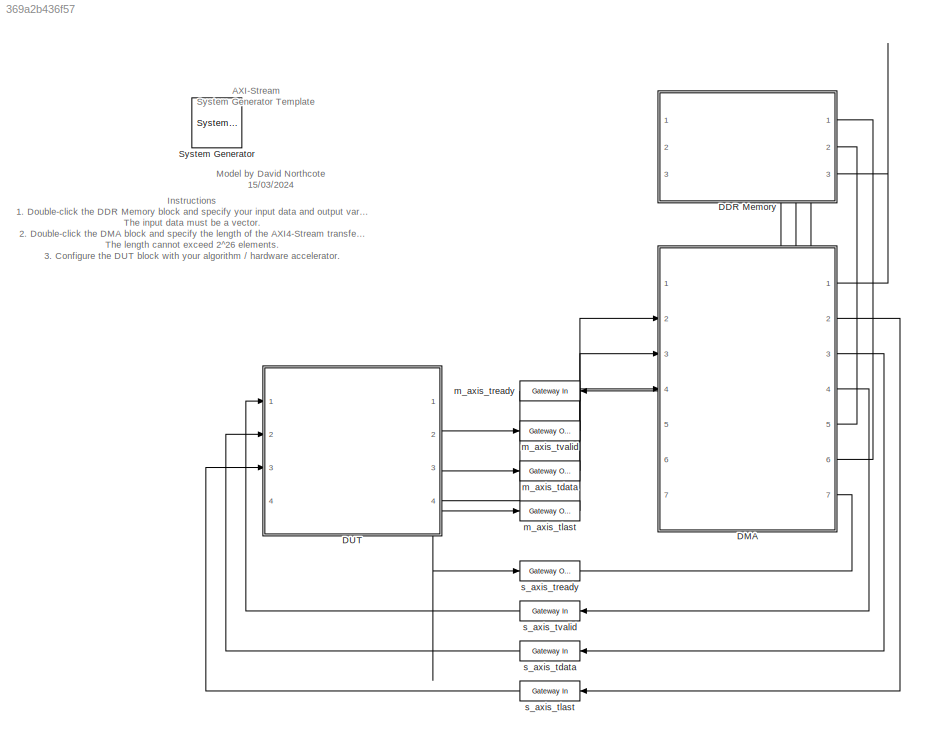
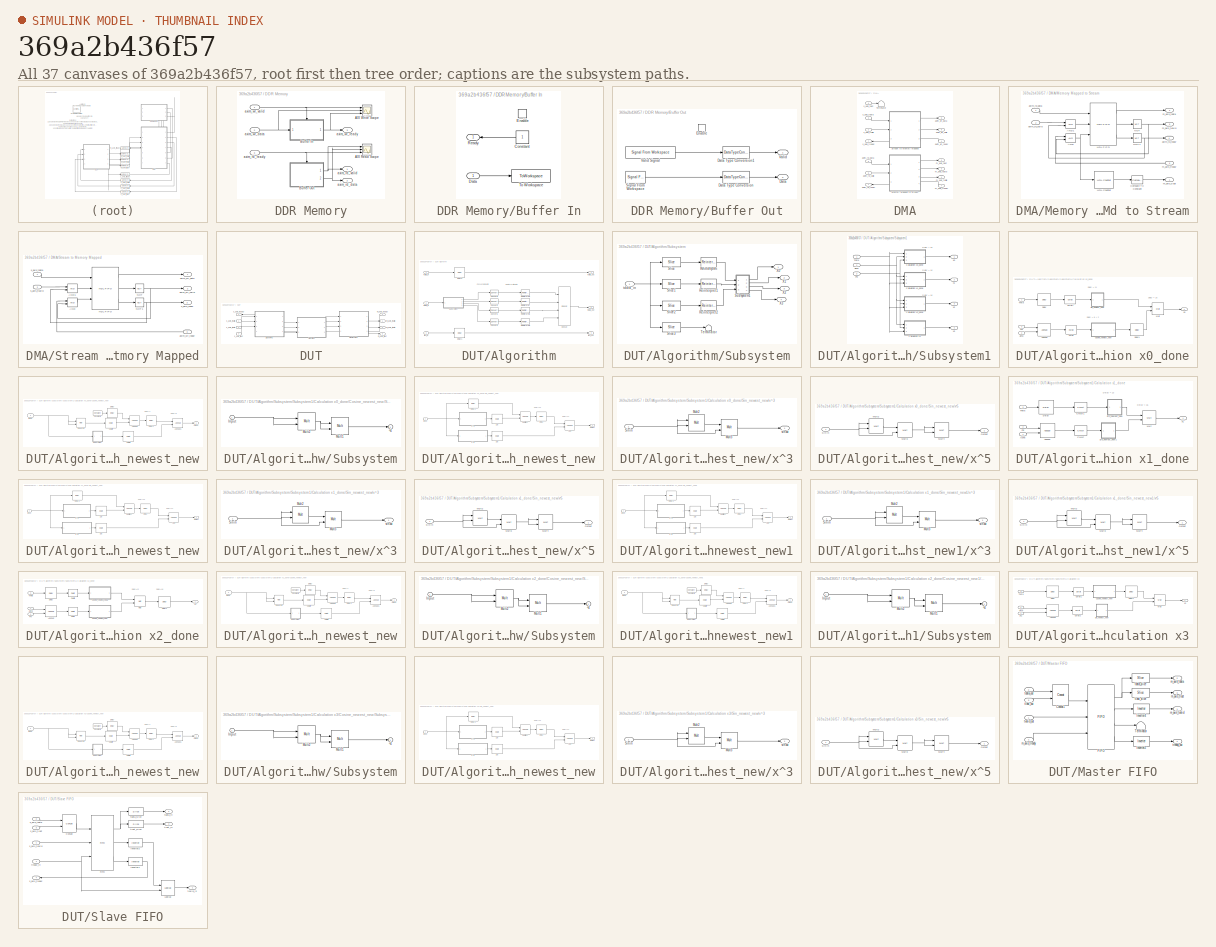
[diagram: thumbnail index - all 37 canvases of the model, root first then tree order]
MODEL slx_369a2b436f57
KIND model
CONFIG AbsTol = auto
CONFIG EnableMultiTasking = off
CONFIG FixedStep = auto
CONFIG MaxStep = auto
CONFIG MinStep = auto
CONFIG PreLoadFcn = clear all;\n\nfs = 100e6;
CONFIG RelTol = 1e-3
CONFIG SampleTimeConstraint = Unconstrained
CONFIG Solver = VariableStepAuto
CONFIG SolverName = VariableStepAuto
CONFIG StartTime = 0.0
CONFIG StopTime = 48/(fs)
BLOCK [Reference]  System Generator  REF=xbsIndex_r4/ System Generator
  AttributesFormatString = System\nGenerator
  Ports = []
  SourceBlock = xbsIndex_r4/ System Generator
  SourceType = Xilinx System Generator Block
  Tag = genX
  UserDataPersistent = on
BLOCK [SubSystem] DDR Memory
  PortSchema = {"entries":[{"content":{"sides":[{"content":{"connectorIds":["Out3","In1","In2"]},"type":"ConnectorPlacement.EquallySpacedRectSide","uuid":"10820561-fcd3-42da-ac38-14c6f993f770"},{"content":{"connectorIds":["In3","Out1","Out2"],"side":"RIGHT"},"type":"ConnectorPlacement.EquallySpacedRectSide","uuid":"072276f7-1cf8-495f-bb0a-1bca7e8326ea"},{"content":{"connectorIds":[],"side":"TOP"},"type":"Connect...<+268ch>
  Ports = [3, 3]
  RequestExecContextInheritance = off
BLOCK [Scope] DDR Memory/AXI Read Scope
  DefaultConfigurationName = spbscopes.TimeScopeBlockCfg
  Floating = off
  NumInputPorts = 3
  Ports = [3]
  ScopeSpecificationString = spbscopes.TimeScopeBlockCfg('CurrentConfiguration', extmgr.ConfigurationSet(extmgr.Configuration('Core','General UI',true,'FigureColor',[0.8 0.8 0.8]),extmgr.Configuration('Core','Source UI',true),extmgr.Configuration('Sources','WiredSimulink',true,'DataLoggingVariableName','ScopeData1'),extmgr.Configuration('Visuals','Time Domain',true,'DisplayLayoutDimensions',[3 1],'DisplayPropertyDefaults',str...<+4887ch>
  UserDataPersistent = on
BLOCK [Scope] DDR Memory/AXI Write Scope
  DefaultConfigurationName = spbscopes.TimeScopeBlockCfg
  Floating = off
  NumInputPorts = 3
  Ports = [3]
  ScopeSpecificationString = spbscopes.TimeScopeBlockCfg('CurrentConfiguration', extmgr.ConfigurationSet(extmgr.Configuration('Core','General UI',true,'FigureColor',[0.8 0.8 0.8]),extmgr.Configuration('Core','Source UI',true),extmgr.Configuration('Sources','WiredSimulink',true),extmgr.Configuration('Visuals','Time Domain',true,'DisplayLayoutDimensions',[3 1],'DisplayPropertyDefaults',struct('YLabelReal','Amplitude','ColorOrde...<+4840ch>
  UserDataPersistent = on
BLOCK [SubSystem] DDR Memory/Buffer In
  Ports = [1, 1, 1]
  RequestExecContextInheritance = off
BLOCK [Constant] DDR Memory/Buffer In/Constant
  OutDataTypeStr = boolean
  SampleTime = -1
BLOCK [Inport] DDR Memory/Buffer In/Data
BLOCK [EnablePort] DDR Memory/Buffer In/Enable
  Ports = []
BLOCK [Outport] DDR Memory/Buffer In/Ready
BLOCK [ToWorkspace] DDR Memory/Buffer In/To Workspace
  FixptAsFi = on
  MaxDataPoints = inf
  Ports = [1]
  SampleTime = -1
  VariableName = bufferIn
BLOCK [SubSystem] DDR Memory/Buffer Out
  Ports = [0, 2, 1]
  RequestExecContextInheritance = off
BLOCK [Outport] DDR Memory/Buffer Out/Data
  Port = 2
BLOCK [DataTypeConversion] DDR Memory/Buffer Out/Data Type Conversion
  OutDataTypeStr = dtypeStr
  RndMeth = Floor
  SaturateOnIntegerOverflow = off
BLOCK [DataTypeConversion] DDR Memory/Buffer Out/Data Type Conversion1
  OutDataTypeStr = boolean
  RndMeth = Floor
  SaturateOnIntegerOverflow = off
BLOCK [EnablePort] DDR Memory/Buffer Out/Enable
  Ports = []
BLOCK [Reference] DDR Memory/Buffer Out/Signal From Workspace  REF=dspsrcs4/Signal From
Workspace
  Ports = [0, 1]
  SourceBlock = dspsrcs4/Signal From\nWorkspace
  SourceProductBaseCode = DS
  SourceType = Signal From Workspace
BLOCK [Outport] DDR Memory/Buffer Out/Valid
BLOCK [Reference] DDR Memory/Buffer Out/Valid Signal  REF=dspsrcs4/Signal From
Workspace
  Ports = [0, 1]
  SourceBlock = dspsrcs4/Signal From\nWorkspace
  SourceProductBaseCode = DS
  SourceType = Signal From Workspace
BLOCK [Outport] DDR Memory/axim_rd_data
  Port = 2
BLOCK [Inport] DDR Memory/axim_rd_ready
  Port = 3
BLOCK [Outport] DDR Memory/axim_rd_valid
BLOCK [Inport] DDR Memory/axim_wr_data
  Port = 2
BLOCK [Outport] DDR Memory/axim_wr_ready
  Port = 3
BLOCK [Inport] DDR Memory/axim_wr_valid
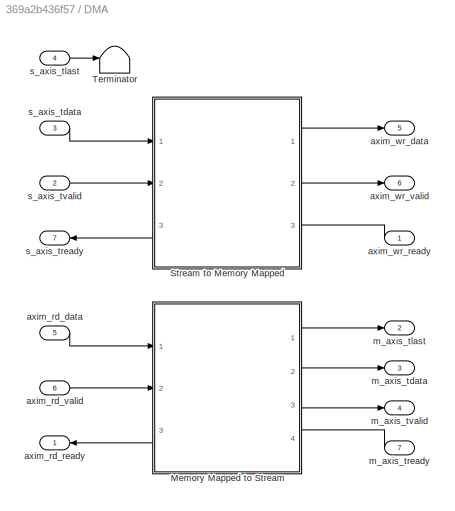
BLOCK [SubSystem] DMA
  PortSchema = {"entries":[{"content":{"sides":[{"content":{"connectorIds":["Out5","Out6","In1","Out7","In2","In3","In4"]},"type":"ConnectorPlacement.EquallySpacedRectSide","uuid":"c102abcb-2e00-4fd7-85df-5b9b0b898bd0"},{"content":{"connectorIds":["In5","In6","Out1","Out2","Out3","Out4","In7"],"side":"RIGHT"},"type":"ConnectorPlacement.EquallySpacedRectSide","uuid":"9e178eef-1e1d-41e3-971e-2eb7c6a5387e"},{"conte...<+464ch>
  Ports = [7, 7]
  RequestExecContextInheritance = off
BLOCK [SubSystem] DMA/Memory Mapped to Stream
  PortSchema = {"entries":[{"content":{"sides":[{"content":{"connectorIds":["In1","In2","Out4"]},"type":"ConnectorPlacement.EquallySpacedRectSide","uuid":"10820561-fcd3-42da-ac38-14c6f993f770"},{"content":{"connectorIds":["Out1","Out2","Out3","In3"],"side":"RIGHT"},"type":"ConnectorPlacement.EquallySpacedRectSide","uuid":"072276f7-1cf8-495f-bb0a-1bca7e8326ea"},{"content":{"connectorIds":[],"side":"TOP"},"type":"...<+275ch>
  Ports = [3, 4]
  RequestExecContextInheritance = off
BLOCK [Logic] DMA/Memory Mapped to Stream/AND
  AllPortsSameDT = off
  IconShape = distinctive
  OutDataTypeStr = boolean
  Ports = [2, 1]
BLOCK [Logic] DMA/Memory Mapped to Stream/AND1
  AllPortsSameDT = off
  IconShape = distinctive
  OutDataTypeStr = boolean
  Ports = [2, 1]
BLOCK [Reference] DMA/Memory Mapped to Stream/Compare To Constant  REF=simulink/Logic and Bit
Operations/Compare
To Constant
  Ports = [1, 1]
  SourceBlock = simulink/Logic and Bit\nOperations/Compare\nTo Constant
  SourceProductBaseCode = SL
  SourceType = Compare To Constant
BLOCK [Reference] DMA/Memory Mapped to Stream/HDL Counter  REF=hdlsllib/Sources/HDL Counter
  Ports = [1, 1]
  SourceBlock = hdlsllib/Sources/HDL Counter
  SourceProductBaseCode = SL
  SourceType = HDL Counter
BLOCK [Reference] DMA/Memory Mapped to Stream/HDL FIFO  REF=hdlsllib/HDL RAMs/HDL FIFO
  Ports = [3, 3]
  SourceBlock = hdlsllib/HDL RAMs/HDL FIFO
  SourceProductBaseCode = SL
  SourceType = HDL_FIFO
BLOCK [Logic] DMA/Memory Mapped to Stream/NOT
  AllPortsSameDT = off
  IconShape = distinctive
  Operator = NOT
  OutDataTypeStr = boolean
  Ports = [1, 1]
BLOCK [Logic] DMA/Memory Mapped to Stream/NOT1
  AllPortsSameDT = off
  IconShape = distinctive
  Operator = NOT
  OutDataTypeStr = boolean
  Ports = [1, 1]
BLOCK [Inport] DMA/Memory Mapped to Stream/axim_rd_data
BLOCK [Outport] DMA/Memory Mapped to Stream/axim_rd_ready
  Port = 4
  VectorParamsAs1DForOutWhenUnconnected = off
BLOCK [Inport] DMA/Memory Mapped to Stream/axim_rd_valid
  Port = 2
BLOCK [Outport] DMA/Memory Mapped to Stream/m_axis_tdata
  Port = 2
  VectorParamsAs1DForOutWhenUnconnected = off
BLOCK [Outport] DMA/Memory Mapped to Stream/m_axis_tlast
  VectorParamsAs1DForOutWhenUnconnected = off
BLOCK [Inport] DMA/Memory Mapped to Stream/m_axis_tready
  Port = 3
BLOCK [Outport] DMA/Memory Mapped to Stream/m_axis_tvalid
  Port = 3
  VectorParamsAs1DForOutWhenUnconnected = off
BLOCK [SubSystem] DMA/Stream to Memory Mapped
  PortSchema = {"entries":[{"content":{"sides":[{"content":{"connectorIds":["In1","In2","Out3"]},"type":"ConnectorPlacement.EquallySpacedRectSide","uuid":"10820561-fcd3-42da-ac38-14c6f993f770"},{"content":{"connectorIds":["Out1","Out2","In3"],"side":"RIGHT"},"type":"ConnectorPlacement.EquallySpacedRectSide","uuid":"072276f7-1cf8-495f-bb0a-1bca7e8326ea"},{"content":{"connectorIds":[],"side":"TOP"},"type":"Connect...<+268ch>
  Ports = [3, 3]
  RequestExecContextInheritance = off
BLOCK [Logic] DMA/Stream to Memory Mapped/AND
  AllPortsSameDT = off
  IconShape = distinctive
  OutDataTypeStr = boolean
  Ports = [2, 1]
BLOCK [Logic] DMA/Stream to Memory Mapped/AND1
  AllPortsSameDT = off
  IconShape = distinctive
  OutDataTypeStr = boolean
  Ports = [2, 1]
BLOCK [Reference] DMA/Stream to Memory Mapped/HDL FIFO  REF=hdlsllib/HDL RAMs/HDL FIFO
  Ports = [3, 3]
  SourceBlock = hdlsllib/HDL RAMs/HDL FIFO
  SourceProductBaseCode = SL
  SourceType = HDL_FIFO
BLOCK [Logic] DMA/Stream to Memory Mapped/NOT
  AllPortsSameDT = off
  IconShape = distinctive
  Operator = NOT
  OutDataTypeStr = boolean
  Ports = [1, 1]
BLOCK [Logic] DMA/Stream to Memory Mapped/NOT1
  AllPortsSameDT = off
  IconShape = distinctive
  Operator = NOT
  OutDataTypeStr = boolean
  Ports = [1, 1]
BLOCK [Outport] DMA/Stream to Memory Mapped/axim_wr_data
  VectorParamsAs1DForOutWhenUnconnected = off
BLOCK [Inport] DMA/Stream to Memory Mapped/axim_wr_ready
  Port = 3
BLOCK [Outport] DMA/Stream to Memory Mapped/axim_wr_valid
  Port = 2
  VectorParamsAs1DForOutWhenUnconnected = off
BLOCK [Outport] DMA/Stream to Memory Mapped/s_axis_ready
  Port = 3
  VectorParamsAs1DForOutWhenUnconnected = off
BLOCK [Inport] DMA/Stream to Memory Mapped/s_axis_tdata
BLOCK [Inport] DMA/Stream to Memory Mapped/s_axis_tvalid
  Port = 2
BLOCK [Terminator] DMA/Terminator
BLOCK [Inport] DMA/axim_rd_data
  Port = 5
BLOCK [Outport] DMA/axim_rd_ready
BLOCK [Inport] DMA/axim_rd_valid
  Port = 6
BLOCK [Outport] DMA/axim_wr_data
  Port = 5
BLOCK [Inport] DMA/axim_wr_ready
BLOCK [Outport] DMA/axim_wr_valid
  Port = 6
BLOCK [Outport] DMA/m_axis_tdata
  Port = 3
  VectorParamsAs1DForOutWhenUnconnected = off
BLOCK [Outport] DMA/m_axis_tlast
  Port = 2
  VectorParamsAs1DForOutWhenUnconnected = off
BLOCK [Inport] DMA/m_axis_tready
  Port = 7
BLOCK [Outport] DMA/m_axis_tvalid
  Port = 4
  VectorParamsAs1DForOutWhenUnconnected = off
BLOCK [Inport] DMA/s_axis_tdata
  Port = 3
BLOCK [Inport] DMA/s_axis_tlast
  Port = 4
BLOCK [Outport] DMA/s_axis_tready
  Port = 7
  VectorParamsAs1DForOutWhenUnconnected = off
BLOCK [Inport] DMA/s_axis_tvalid
  Port = 2
BLOCK [SubSystem] DUT
  PortSchema = {"entries":[{"content":{"sides":[{"content":{"connectorIds":["Out4","In1","In2","In3"]},"type":"ConnectorPlacement.EquallySpacedRectSide","uuid":"c102abcb-2e00-4fd7-85df-5b9b0b898bd0"},{"content":{"connectorIds":["In4","Out1","Out2","Out3"],"side":"RIGHT"},"type":"ConnectorPlacement.EquallySpacedRectSide","uuid":"9e178eef-1e1d-41e3-971e-2eb7c6a5387e"},{"content":{"connectorIds":[],"side":"TOP"},"t...<+281ch>
  Ports = [4, 4]
  RequestExecContextInheritance = off
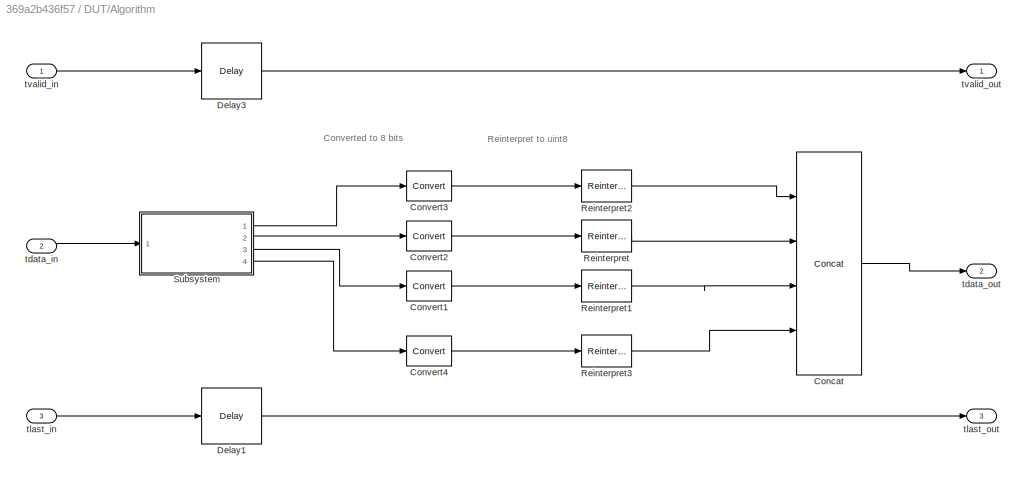
BLOCK [SubSystem] DUT/Algorithm
  Ports = [3, 3]
  RequestExecContextInheritance = off
BLOCK [Reference] DUT/Algorithm/Concat  REF=xbsIndex_r4/Concat
  Ports = [4, 1]
  SourceBlock = xbsIndex_r4/Concat
  SourceType = Xilinx Bus Concatenator Block
BLOCK [Reference] DUT/Algorithm/Convert1  REF=xbsIndex_r4/Convert
  Ports = [1, 1]
  SourceBlock = xbsIndex_r4/Convert
  SourceType = Xilinx Type Converter Block
BLOCK [Reference] DUT/Algorithm/Convert2  REF=xbsIndex_r4/Convert
  Ports = [1, 1]
  SourceBlock = xbsIndex_r4/Convert
  SourceType = Xilinx Type Converter Block
BLOCK [Reference] DUT/Algorithm/Convert3  REF=xbsIndex_r4/Convert
  Ports = [1, 1]
  SourceBlock = xbsIndex_r4/Convert
  SourceType = Xilinx Type Converter Block
BLOCK [Reference] DUT/Algorithm/Convert4  REF=xbsIndex_r4/Convert
  Ports = [1, 1]
  SourceBlock = xbsIndex_r4/Convert
  SourceType = Xilinx Type Converter Block
BLOCK [Reference] DUT/Algorithm/Delay1  REF=xbsIndex_r4/Delay
  Ports = [1, 1]
  SourceBlock = xbsIndex_r4/Delay
  SourceType = Xilinx Delay Block
BLOCK [Reference] DUT/Algorithm/Delay3  REF=xbsIndex_r4/Delay
  Ports = [1, 1]
  SourceBlock = xbsIndex_r4/Delay
  SourceType = Xilinx Delay Block
BLOCK [Reference] DUT/Algorithm/Reinterpret  REF=xbsIndex_r4/Reinterpret
  Ports = [1, 1]
  SourceBlock = xbsIndex_r4/Reinterpret
  SourceType = Xilinx Type Reinterpreter Block
BLOCK [Reference] DUT/Algorithm/Reinterpret1  REF=xbsIndex_r4/Reinterpret
  Ports = [1, 1]
  SourceBlock = xbsIndex_r4/Reinterpret
  SourceType = Xilinx Type Reinterpreter Block
BLOCK [Reference] DUT/Algorithm/Reinterpret2  REF=xbsIndex_r4/Reinterpret
  Ports = [1, 1]
  SourceBlock = xbsIndex_r4/Reinterpret
  SourceType = Xilinx Type Reinterpreter Block
BLOCK [Reference] DUT/Algorithm/Reinterpret3  REF=xbsIndex_r4/Reinterpret
  Ports = [1, 1]
  SourceBlock = xbsIndex_r4/Reinterpret
  SourceType = Xilinx Type Reinterpreter Block
BLOCK [SubSystem] DUT/Algorithm/Subsystem
  Ports = [1, 4]
  RequestExecContextInheritance = off
BLOCK [Reference] DUT/Algorithm/Subsystem/Reinterpret  REF=xbsIndex_r4/Reinterpret
  Ports = [1, 1]
  SourceBlock = xbsIndex_r4/Reinterpret
  SourceType = Xilinx Type Reinterpreter Block
BLOCK [Reference] DUT/Algorithm/Subsystem/Reinterpret1  REF=xbsIndex_r4/Reinterpret
  Ports = [1, 1]
  SourceBlock = xbsIndex_r4/Reinterpret
  SourceType = Xilinx Type Reinterpreter Block
BLOCK [Reference] DUT/Algorithm/Subsystem/Reinterpret2  REF=xbsIndex_r4/Reinterpret
  Ports = [1, 1]
  SourceBlock = xbsIndex_r4/Reinterpret
  SourceType = Xilinx Type Reinterpreter Block
BLOCK [Reference] DUT/Algorithm/Subsystem/Slice  REF=xbsIndex_r4/Slice
  Ports = [1, 1]
  SourceBlock = xbsIndex_r4/Slice
  SourceType = Xilinx Bit Slice Extractor Block
BLOCK [Reference] DUT/Algorithm/Subsystem/Slice1  REF=xbsIndex_r4/Slice
  Ports = [1, 1]
  SourceBlock = xbsIndex_r4/Slice
  SourceType = Xilinx Bit Slice Extractor Block
BLOCK [Reference] DUT/Algorithm/Subsystem/Slice2  REF=xbsIndex_r4/Slice
  Ports = [1, 1]
  SourceBlock = xbsIndex_r4/Slice
  SourceType = Xilinx Bit Slice Extractor Block
BLOCK [Reference] DUT/Algorithm/Subsystem/Slice3  REF=xbsIndex_r4/Slice
  Ports = [1, 1]
  SourceBlock = xbsIndex_r4/Slice
  SourceType = Xilinx Bit Slice Extractor Block
BLOCK [SubSystem] DUT/Algorithm/Subsystem/Subsystem1
  Ports = [3, 4]
  RequestExecContextInheritance = off
BLOCK [Inport] DUT/Algorithm/Subsystem/Subsystem1/Alpha
  Port = 2
BLOCK [SubSystem] DUT/Algorithm/Subsystem/Subsystem1/Calculation x0_done
  Ports = [3, 1]
  RequestExecContextInheritance = off
BLOCK [Reference] DUT/Algorithm/Subsystem/Subsystem1/Calculation x0_done/AddSub  REF=xbsIndex_r4/AddSub
  Ports = [2, 1]
  SourceBlock = xbsIndex_r4/AddSub
  SourceType = Xilinx Adder/Subtracter Block
BLOCK [Inport] DUT/Algorithm/Subsystem/Subsystem1/Calculation x0_done/Alpha
  Port = 2
BLOCK [Reference] DUT/Algorithm/Subsystem/Subsystem1/Calculation x0_done/CMult  REF=xbsIndex_r4/CMult
  Ports = [1, 1]
  SourceBlock = xbsIndex_r4/CMult
  SourceType = Xilinx Constant Multiplier Block
BLOCK [Reference] DUT/Algorithm/Subsystem/Subsystem1/Calculation x0_done/CMult1  REF=xbsIndex_r4/CMult
  Ports = [1, 1]
  SourceBlock = xbsIndex_r4/CMult
  SourceType = Xilinx Constant Multiplier Block
BLOCK [SubSystem] DUT/Algorithm/Subsystem/Subsystem1/Calculation x0_done/Cosine_newest_new
  Ports = [1, 1]
  RequestExecContextInheritance = off
BLOCK [Reference] DUT/Algorithm/Subsystem/Subsystem1/Calculation x0_done/Cosine_newest_new/AddSub  REF=xbsIndex_r4/AddSub
  Ports = [2, 1]
  SourceBlock = xbsIndex_r4/AddSub
  SourceType = Xilinx Adder/Subtracter Block
BLOCK [Reference] DUT/Algorithm/Subsystem/Subsystem1/Calculation x0_done/Cosine_newest_new/AddSub1  REF=xbsIndex_r4/AddSub
  Ports = [2, 1]
  SourceBlock = xbsIndex_r4/AddSub
  SourceType = Xilinx Adder/Subtracter Block
BLOCK [Reference] DUT/Algorithm/Subsystem/Subsystem1/Calculation x0_done/Cosine_newest_new/CMult3  REF=xbsIndex_r4/CMult
  Ports = [1, 1]
  SourceBlock = xbsIndex_r4/CMult
  SourceType = Xilinx Constant Multiplier Block
BLOCK [Reference] DUT/Algorithm/Subsystem/Subsystem1/Calculation x0_done/Cosine_newest_new/CMult4  REF=xbsIndex_r4/CMult
  Ports = [1, 1]
  SourceBlock = xbsIndex_r4/CMult
  SourceType = Xilinx Constant Multiplier Block
BLOCK [Reference] DUT/Algorithm/Subsystem/Subsystem1/Calculation x0_done/Cosine_newest_new/Constant1  REF=xbsIndex_r4/Constant
  Ports = [0, 1]
  SourceBlock = xbsIndex_r4/Constant
  SourceType = Xilinx Constant Block Block
BLOCK [Reference] DUT/Algorithm/Subsystem/Subsystem1/Calculation x0_done/Cosine_newest_new/Delay  REF=xbsIndex_r4/Delay
  Ports = [1, 1]
  SourceBlock = xbsIndex_r4/Delay
  SourceType = Xilinx Delay Block
BLOCK [Reference] DUT/Algorithm/Subsystem/Subsystem1/Calculation x0_done/Cosine_newest_new/Delay1  REF=xbsIndex_r4/Delay
  Ports = [1, 1]
  SourceBlock = xbsIndex_r4/Delay
  SourceType = Xilinx Delay Block
BLOCK [Inport] DUT/Algorithm/Subsystem/Subsystem1/Calculation x0_done/Cosine_newest_new/Input
BLOCK [Outport] DUT/Algorithm/Subsystem/Subsystem1/Calculation x0_done/Cosine_newest_new/Output
BLOCK [Reference] DUT/Algorithm/Subsystem/Subsystem1/Calculation x0_done/Cosine_newest_new/Squared  REF=xbsIndex_r4/Mult
  Ports = [2, 1]
  SourceBlock = xbsIndex_r4/Mult
  SourceType = Xilinx Multiplier Block
BLOCK [SubSystem] DUT/Algorithm/Subsystem/Subsystem1/Calculation x0_done/Cosine_newest_new/Subsystem
  Ports = [1, 1]
  RequestExecContextInheritance = off
BLOCK [Inport] DUT/Algorithm/Subsystem/Subsystem1/Calculation x0_done/Cosine_newest_new/Subsystem/Input
BLOCK [Reference] DUT/Algorithm/Subsystem/Subsystem1/Calculation x0_done/Cosine_newest_new/Subsystem/Mult1  REF=xbsIndex_r4/Mult
  Ports = [2, 1]
  SourceBlock = xbsIndex_r4/Mult
  SourceType = Xilinx Multiplier Block
BLOCK [Reference] DUT/Algorithm/Subsystem/Subsystem1/Calculation x0_done/Cosine_newest_new/Subsystem/Mult2  REF=xbsIndex_r4/Mult
  Ports = [2, 1]
  SourceBlock = xbsIndex_r4/Mult
  SourceType = Xilinx Multiplier Block
BLOCK [Outport] DUT/Algorithm/Subsystem/Subsystem1/Calculation x0_done/Cosine_newest_new/Subsystem/^4
BLOCK [Reference] DUT/Algorithm/Subsystem/Subsystem1/Calculation x0_done/Delay  REF=xbsIndex_r4/Delay
  Ports = [1, 1]
  SourceBlock = xbsIndex_r4/Delay
  SourceType = Xilinx Delay Block
BLOCK [Reference] DUT/Algorithm/Subsystem/Subsystem1/Calculation x0_done/Delay1  REF=xbsIndex_r4/Delay
  Ports = [1, 1]
  SourceBlock = xbsIndex_r4/Delay
  SourceType = Xilinx Delay Block
BLOCK [Reference] DUT/Algorithm/Subsystem/Subsystem1/Calculation x0_done/Mult  REF=xbsIndex_r4/Mult
  Ports = [2, 1]
  SourceBlock = xbsIndex_r4/Mult
  SourceType = Xilinx Multiplier Block
BLOCK [Inport] DUT/Algorithm/Subsystem/Subsystem1/Calculation x0_done/Phi
  Port = 3
BLOCK [SubSystem] DUT/Algorithm/Subsystem/Subsystem1/Calculation x0_done/Sin_newest_new
  Ports = [1, 1]
  RequestExecContextInheritance = off
BLOCK [Reference] DUT/Algorithm/Subsystem/Subsystem1/Calculation x0_done/Sin_newest_new/1//3!  REF=xbsIndex_r4/CMult
  Ports = [1, 1]
  SourceBlock = xbsIndex_r4/CMult
  SourceType = Xilinx Constant Multiplier Block
BLOCK [Reference] DUT/Algorithm/Subsystem/Subsystem1/Calculation x0_done/Sin_newest_new/1//5!  REF=xbsIndex_r4/CMult
  Ports = [1, 1]
  SourceBlock = xbsIndex_r4/CMult
  SourceType = Xilinx Constant Multiplier Block
BLOCK [Reference] DUT/Algorithm/Subsystem/Subsystem1/Calculation x0_done/Sin_newest_new/Add  REF=xbsIndex_r4/AddSub
  Ports = [2, 1]
  SourceBlock = xbsIndex_r4/AddSub
  SourceType = Xilinx Adder/Subtracter Block
BLOCK [Reference] DUT/Algorithm/Subsystem/Subsystem1/Calculation x0_done/Sin_newest_new/Delay  REF=xbsIndex_r4/Delay
  Ports = [1, 1]
  SourceBlock = xbsIndex_r4/Delay
  SourceType = Xilinx Delay Block
BLOCK [Reference] DUT/Algorithm/Subsystem/Subsystem1/Calculation x0_done/Sin_newest_new/Delay1  REF=xbsIndex_r4/Delay
  Ports = [1, 1]
  SourceBlock = xbsIndex_r4/Delay
  SourceType = Xilinx Delay Block
BLOCK [Inport] DUT/Algorithm/Subsystem/Subsystem1/Calculation x0_done/Sin_newest_new/Input 
BLOCK [Outport] DUT/Algorithm/Subsystem/Subsystem1/Calculation x0_done/Sin_newest_new/Output
BLOCK [Reference] DUT/Algorithm/Subsystem/Subsystem1/Calculation x0_done/Sin_newest_new/Subtract  REF=xbsIndex_r4/AddSub
  Ports = [2, 1]
  SourceBlock = xbsIndex_r4/AddSub
  SourceType = Xilinx Adder/Subtracter Block
BLOCK [SubSystem] DUT/Algorithm/Subsystem/Subsystem1/Calculation x0_done/Sin_newest_new/x^3
  Ports = [1, 1]
  RequestExecContextInheritance = off
BLOCK [Reference] DUT/Algorithm/Subsystem/Subsystem1/Calculation x0_done/Sin_newest_new/x^3/Mult2  REF=xbsIndex_r4/Mult
  Ports = [2, 1]
  SourceBlock = xbsIndex_r4/Mult
  SourceType = Xilinx Multiplier Block
BLOCK [Reference] DUT/Algorithm/Subsystem/Subsystem1/Calculation x0_done/Sin_newest_new/x^3/Mult3  REF=xbsIndex_r4/Mult
  Ports = [2, 1]
  SourceBlock = xbsIndex_r4/Mult
  SourceType = Xilinx Multiplier Block
BLOCK [Inport] DUT/Algorithm/Subsystem/Subsystem1/Calculation x0_done/Sin_newest_new/x^3/Sin in
BLOCK [Outport] DUT/Algorithm/Subsystem/Subsystem1/Calculation x0_done/Sin_newest_new/x^3/sin out
BLOCK [SubSystem] DUT/Algorithm/Subsystem/Subsystem1/Calculation x0_done/Sin_newest_new/x^5
  Ports = [1, 1]
  RequestExecContextInheritance = off
BLOCK [Reference] DUT/Algorithm/Subsystem/Subsystem1/Calculation x0_done/Sin_newest_new/x^5/Mult2  REF=xbsIndex_r4/Mult
  Ports = [2, 1]
  SourceBlock = xbsIndex_r4/Mult
  SourceType = Xilinx Multiplier Block
BLOCK [Reference] DUT/Algorithm/Subsystem/Subsystem1/Calculation x0_done/Sin_newest_new/x^5/Mult3  REF=xbsIndex_r4/Mult
  Ports = [2, 1]
  SourceBlock = xbsIndex_r4/Mult
  SourceType = Xilinx Multiplier Block
BLOCK [Reference] DUT/Algorithm/Subsystem/Subsystem1/Calculation x0_done/Sin_newest_new/x^5/Mult4  REF=xbsIndex_r4/Mult
  Ports = [2, 1]
  SourceBlock = xbsIndex_r4/Mult
  SourceType = Xilinx Multiplier Block
BLOCK [Outport] DUT/Algorithm/Subsystem/Subsystem1/Calculation x0_done/Sin_newest_new/x^5/Output
BLOCK [Inport] DUT/Algorithm/Subsystem/Subsystem1/Calculation x0_done/Sin_newest_new/x^5/Sin in
BLOCK [Inport] DUT/Algorithm/Subsystem/Subsystem1/Calculation x0_done/Theta
BLOCK [Outport] DUT/Algorithm/Subsystem/Subsystem1/Calculation x0_done/X0
BLOCK [SubSystem] DUT/Algorithm/Subsystem/Subsystem1/Calculation x1_done
  Ports = [3, 1]
  RequestExecContextInheritance = off
BLOCK [Reference] DUT/Algorithm/Subsystem/Subsystem1/Calculation x1_done/AddSub  REF=xbsIndex_r4/AddSub
  Ports = [2, 1]
  SourceBlock = xbsIndex_r4/AddSub
  SourceType = Xilinx Adder/Subtracter Block
BLOCK [Inport] DUT/Algorithm/Subsystem/Subsystem1/Calculation x1_done/Alpha
BLOCK [Reference] DUT/Algorithm/Subsystem/Subsystem1/Calculation x1_done/CMult  REF=xbsIndex_r4/CMult
  Ports = [1, 1]
  SourceBlock = xbsIndex_r4/CMult
  SourceType = Xilinx Constant Multiplier Block
BLOCK [Reference] DUT/Algorithm/Subsystem/Subsystem1/Calculation x1_done/CMult1  REF=xbsIndex_r4/CMult
  Ports = [1, 1]
  SourceBlock = xbsIndex_r4/CMult
  SourceType = Xilinx Constant Multiplier Block
BLOCK [Reference] DUT/Algorithm/Subsystem/Subsystem1/Calculation x1_done/Delay  REF=xbsIndex_r4/Delay
  Ports = [1, 1]
  SourceBlock = xbsIndex_r4/Delay
  SourceType = Xilinx Delay Block
BLOCK [Reference] DUT/Algorithm/Subsystem/Subsystem1/Calculation x1_done/Mult  REF=xbsIndex_r4/Mult
  Ports = [2, 1]
  SourceBlock = xbsIndex_r4/Mult
  SourceType = Xilinx Multiplier Block
BLOCK [Inport] DUT/Algorithm/Subsystem/Subsystem1/Calculation x1_done/Phi
  Port = 2
BLOCK [SubSystem] DUT/Algorithm/Subsystem/Subsystem1/Calculation x1_done/Sin_newest_new
  Ports = [1, 1]
  RequestExecContextInheritance = off
BLOCK [Reference] DUT/Algorithm/Subsystem/Subsystem1/Calculation x1_done/Sin_newest_new/1//3!  REF=xbsIndex_r4/CMult
  Ports = [1, 1]
  SourceBlock = xbsIndex_r4/CMult
  SourceType = Xilinx Constant Multiplier Block
BLOCK [Reference] DUT/Algorithm/Subsystem/Subsystem1/Calculation x1_done/Sin_newest_new/1//5!  REF=xbsIndex_r4/CMult
  Ports = [1, 1]
  SourceBlock = xbsIndex_r4/CMult
  SourceType = Xilinx Constant Multiplier Block
BLOCK [Reference] DUT/Algorithm/Subsystem/Subsystem1/Calculation x1_done/Sin_newest_new/Add  REF=xbsIndex_r4/AddSub
  Ports = [2, 1]
  SourceBlock = xbsIndex_r4/AddSub
  SourceType = Xilinx Adder/Subtracter Block
BLOCK [Reference] DUT/Algorithm/Subsystem/Subsystem1/Calculation x1_done/Sin_newest_new/Delay  REF=xbsIndex_r4/Delay
  Ports = [1, 1]
  SourceBlock = xbsIndex_r4/Delay
  SourceType = Xilinx Delay Block
BLOCK [Reference] DUT/Algorithm/Subsystem/Subsystem1/Calculation x1_done/Sin_newest_new/Delay1  REF=xbsIndex_r4/Delay
  Ports = [1, 1]
  SourceBlock = xbsIndex_r4/Delay
  SourceType = Xilinx Delay Block
BLOCK [Inport] DUT/Algorithm/Subsystem/Subsystem1/Calculation x1_done/Sin_newest_new/Input 
BLOCK [Outport] DUT/Algorithm/Subsystem/Subsystem1/Calculation x1_done/Sin_newest_new/Output
BLOCK [Reference] DUT/Algorithm/Subsystem/Subsystem1/Calculation x1_done/Sin_newest_new/Subtract  REF=xbsIndex_r4/AddSub
  Ports = [2, 1]
  SourceBlock = xbsIndex_r4/AddSub
  SourceType = Xilinx Adder/Subtracter Block
BLOCK [SubSystem] DUT/Algorithm/Subsystem/Subsystem1/Calculation x1_done/Sin_newest_new/x^3
  Ports = [1, 1]
  RequestExecContextInheritance = off
BLOCK [Reference] DUT/Algorithm/Subsystem/Subsystem1/Calculation x1_done/Sin_newest_new/x^3/Mult2  REF=xbsIndex_r4/Mult
  Ports = [2, 1]
  SourceBlock = xbsIndex_r4/Mult
  SourceType = Xilinx Multiplier Block
BLOCK [Reference] DUT/Algorithm/Subsystem/Subsystem1/Calculation x1_done/Sin_newest_new/x^3/Mult3  REF=xbsIndex_r4/Mult
  Ports = [2, 1]
  SourceBlock = xbsIndex_r4/Mult
  SourceType = Xilinx Multiplier Block
BLOCK [Inport] DUT/Algorithm/Subsystem/Subsystem1/Calculation x1_done/Sin_newest_new/x^3/Sin in
BLOCK [Outport] DUT/Algorithm/Subsystem/Subsystem1/Calculation x1_done/Sin_newest_new/x^3/sin out
BLOCK [SubSystem] DUT/Algorithm/Subsystem/Subsystem1/Calculation x1_done/Sin_newest_new/x^5
  Ports = [1, 1]
  RequestExecContextInheritance = off
BLOCK [Reference] DUT/Algorithm/Subsystem/Subsystem1/Calculation x1_done/Sin_newest_new/x^5/Mult2  REF=xbsIndex_r4/Mult
  Ports = [2, 1]
  SourceBlock = xbsIndex_r4/Mult
  SourceType = Xilinx Multiplier Block
BLOCK [Reference] DUT/Algorithm/Subsystem/Subsystem1/Calculation x1_done/Sin_newest_new/x^5/Mult3  REF=xbsIndex_r4/Mult
  Ports = [2, 1]
  SourceBlock = xbsIndex_r4/Mult
  SourceType = Xilinx Multiplier Block
BLOCK [Reference] DUT/Algorithm/Subsystem/Subsystem1/Calculation x1_done/Sin_newest_new/x^5/Mult4  REF=xbsIndex_r4/Mult
  Ports = [2, 1]
  SourceBlock = xbsIndex_r4/Mult
  SourceType = Xilinx Multiplier Block
BLOCK [Outport] DUT/Algorithm/Subsystem/Subsystem1/Calculation x1_done/Sin_newest_new/x^5/Output
BLOCK [Inport] DUT/Algorithm/Subsystem/Subsystem1/Calculation x1_done/Sin_newest_new/x^5/Sin in
BLOCK [SubSystem] DUT/Algorithm/Subsystem/Subsystem1/Calculation x1_done/Sin_newest_new1
  Ports = [1, 1]
  RequestExecContextInheritance = off
BLOCK [Reference] DUT/Algorithm/Subsystem/Subsystem1/Calculation x1_done/Sin_newest_new1/1//3!  REF=xbsIndex_r4/CMult
  Ports = [1, 1]
  SourceBlock = xbsIndex_r4/CMult
  SourceType = Xilinx Constant Multiplier Block
BLOCK [Reference] DUT/Algorithm/Subsystem/Subsystem1/Calculation x1_done/Sin_newest_new1/1//5!  REF=xbsIndex_r4/CMult
  Ports = [1, 1]
  SourceBlock = xbsIndex_r4/CMult
  SourceType = Xilinx Constant Multiplier Block
BLOCK [Reference] DUT/Algorithm/Subsystem/Subsystem1/Calculation x1_done/Sin_newest_new1/Add  REF=xbsIndex_r4/AddSub
  Ports = [2, 1]
  SourceBlock = xbsIndex_r4/AddSub
  SourceType = Xilinx Adder/Subtracter Block
BLOCK [Reference] DUT/Algorithm/Subsystem/Subsystem1/Calculation x1_done/Sin_newest_new1/Delay  REF=xbsIndex_r4/Delay
  Ports = [1, 1]
  SourceBlock = xbsIndex_r4/Delay
  SourceType = Xilinx Delay Block
BLOCK [Reference] DUT/Algorithm/Subsystem/Subsystem1/Calculation x1_done/Sin_newest_new1/Delay1  REF=xbsIndex_r4/Delay
  Ports = [1, 1]
  SourceBlock = xbsIndex_r4/Delay
  SourceType = Xilinx Delay Block
BLOCK [Inport] DUT/Algorithm/Subsystem/Subsystem1/Calculation x1_done/Sin_newest_new1/Input 
BLOCK [Outport] DUT/Algorithm/Subsystem/Subsystem1/Calculation x1_done/Sin_newest_new1/Output
BLOCK [Reference] DUT/Algorithm/Subsystem/Subsystem1/Calculation x1_done/Sin_newest_new1/Subtract  REF=xbsIndex_r4/AddSub
  Ports = [2, 1]
  SourceBlock = xbsIndex_r4/AddSub
  SourceType = Xilinx Adder/Subtracter Block
BLOCK [SubSystem] DUT/Algorithm/Subsystem/Subsystem1/Calculation x1_done/Sin_newest_new1/x^3
  Ports = [1, 1]
  RequestExecContextInheritance = off
BLOCK [Reference] DUT/Algorithm/Subsystem/Subsystem1/Calculation x1_done/Sin_newest_new1/x^3/Mult2  REF=xbsIndex_r4/Mult
  Ports = [2, 1]
  SourceBlock = xbsIndex_r4/Mult
  SourceType = Xilinx Multiplier Block
BLOCK [Reference] DUT/Algorithm/Subsystem/Subsystem1/Calculation x1_done/Sin_newest_new1/x^3/Mult3  REF=xbsIndex_r4/Mult
  Ports = [2, 1]
  SourceBlock = xbsIndex_r4/Mult
  SourceType = Xilinx Multiplier Block
BLOCK [Inport] DUT/Algorithm/Subsystem/Subsystem1/Calculation x1_done/Sin_newest_new1/x^3/Sin in
BLOCK [Outport] DUT/Algorithm/Subsystem/Subsystem1/Calculation x1_done/Sin_newest_new1/x^3/sin out
BLOCK [SubSystem] DUT/Algorithm/Subsystem/Subsystem1/Calculation x1_done/Sin_newest_new1/x^5
  Ports = [1, 1]
  RequestExecContextInheritance = off
BLOCK [Reference] DUT/Algorithm/Subsystem/Subsystem1/Calculation x1_done/Sin_newest_new1/x^5/Mult2  REF=xbsIndex_r4/Mult
  Ports = [2, 1]
  SourceBlock = xbsIndex_r4/Mult
  SourceType = Xilinx Multiplier Block
BLOCK [Reference] DUT/Algorithm/Subsystem/Subsystem1/Calculation x1_done/Sin_newest_new1/x^5/Mult3  REF=xbsIndex_r4/Mult
  Ports = [2, 1]
  SourceBlock = xbsIndex_r4/Mult
  SourceType = Xilinx Multiplier Block
BLOCK [Reference] DUT/Algorithm/Subsystem/Subsystem1/Calculation x1_done/Sin_newest_new1/x^5/Mult4  REF=xbsIndex_r4/Mult
  Ports = [2, 1]
  SourceBlock = xbsIndex_r4/Mult
  SourceType = Xilinx Multiplier Block
BLOCK [Outport] DUT/Algorithm/Subsystem/Subsystem1/Calculation x1_done/Sin_newest_new1/x^5/Output
BLOCK [Inport] DUT/Algorithm/Subsystem/Subsystem1/Calculation x1_done/Sin_newest_new1/x^5/Sin in
BLOCK [Inport] DUT/Algorithm/Subsystem/Subsystem1/Calculation x1_done/Theta
  Port = 3
BLOCK [Outport] DUT/Algorithm/Subsystem/Subsystem1/Calculation x1_done/X1
BLOCK [SubSystem] DUT/Algorithm/Subsystem/Subsystem1/Calculation x2_done
  Ports = [3, 1]
  RequestExecContextInheritance = off
BLOCK [Reference] DUT/Algorithm/Subsystem/Subsystem1/Calculation x2_done/AddSub  REF=xbsIndex_r4/AddSub
  Ports = [2, 1]
  SourceBlock = xbsIndex_r4/AddSub
  SourceType = Xilinx Adder/Subtracter Block
BLOCK [Inport] DUT/Algorithm/Subsystem/Subsystem1/Calculation x2_done/Alpha
BLOCK [Reference] DUT/Algorithm/Subsystem/Subsystem1/Calculation x2_done/CMult  REF=xbsIndex_r4/CMult
  Ports = [1, 1]
  SourceBlock = xbsIndex_r4/CMult
  SourceType = Xilinx Constant Multiplier Block
BLOCK [Reference] DUT/Algorithm/Subsystem/Subsystem1/Calculation x2_done/CMult1  REF=xbsIndex_r4/CMult
  Ports = [1, 1]
  SourceBlock = xbsIndex_r4/CMult
  SourceType = Xilinx Constant Multiplier Block
BLOCK [SubSystem] DUT/Algorithm/Subsystem/Subsystem1/Calculation x2_done/Cosine_newest_new
  Ports = [1, 1]
  RequestExecContextInheritance = off
BLOCK [Reference] DUT/Algorithm/Subsystem/Subsystem1/Calculation x2_done/Cosine_newest_new/AddSub  REF=xbsIndex_r4/AddSub
  Ports = [2, 1]
  SourceBlock = xbsIndex_r4/AddSub
  SourceType = Xilinx Adder/Subtracter Block
BLOCK [Reference] DUT/Algorithm/Subsystem/Subsystem1/Calculation x2_done/Cosine_newest_new/AddSub1  REF=xbsIndex_r4/AddSub
  Ports = [2, 1]
  SourceBlock = xbsIndex_r4/AddSub
  SourceType = Xilinx Adder/Subtracter Block
BLOCK [Reference] DUT/Algorithm/Subsystem/Subsystem1/Calculation x2_done/Cosine_newest_new/CMult3  REF=xbsIndex_r4/CMult
  Ports = [1, 1]
  SourceBlock = xbsIndex_r4/CMult
  SourceType = Xilinx Constant Multiplier Block
BLOCK [Reference] DUT/Algorithm/Subsystem/Subsystem1/Calculation x2_done/Cosine_newest_new/CMult4  REF=xbsIndex_r4/CMult
  Ports = [1, 1]
  SourceBlock = xbsIndex_r4/CMult
  SourceType = Xilinx Constant Multiplier Block
BLOCK [Reference] DUT/Algorithm/Subsystem/Subsystem1/Calculation x2_done/Cosine_newest_new/Constant1  REF=xbsIndex_r4/Constant
  Ports = [0, 1]
  SourceBlock = xbsIndex_r4/Constant
  SourceType = Xilinx Constant Block Block
BLOCK [Reference] DUT/Algorithm/Subsystem/Subsystem1/Calculation x2_done/Cosine_newest_new/Delay  REF=xbsIndex_r4/Delay
  Ports = [1, 1]
  SourceBlock = xbsIndex_r4/Delay
  SourceType = Xilinx Delay Block
BLOCK [Reference] DUT/Algorithm/Subsystem/Subsystem1/Calculation x2_done/Cosine_newest_new/Delay1  REF=xbsIndex_r4/Delay
  Ports = [1, 1]
  SourceBlock = xbsIndex_r4/Delay
  SourceType = Xilinx Delay Block
BLOCK [Inport] DUT/Algorithm/Subsystem/Subsystem1/Calculation x2_done/Cosine_newest_new/Input
BLOCK [Outport] DUT/Algorithm/Subsystem/Subsystem1/Calculation x2_done/Cosine_newest_new/Output
BLOCK [Reference] DUT/Algorithm/Subsystem/Subsystem1/Calculation x2_done/Cosine_newest_new/Squared  REF=xbsIndex_r4/Mult
  Ports = [2, 1]
  SourceBlock = xbsIndex_r4/Mult
  SourceType = Xilinx Multiplier Block
BLOCK [SubSystem] DUT/Algorithm/Subsystem/Subsystem1/Calculation x2_done/Cosine_newest_new/Subsystem
  Ports = [1, 1]
  RequestExecContextInheritance = off
BLOCK [Inport] DUT/Algorithm/Subsystem/Subsystem1/Calculation x2_done/Cosine_newest_new/Subsystem/Input
BLOCK [Reference] DUT/Algorithm/Subsystem/Subsystem1/Calculation x2_done/Cosine_newest_new/Subsystem/Mult1  REF=xbsIndex_r4/Mult
  Ports = [2, 1]
  SourceBlock = xbsIndex_r4/Mult
  SourceType = Xilinx Multiplier Block
BLOCK [Reference] DUT/Algorithm/Subsystem/Subsystem1/Calculation x2_done/Cosine_newest_new/Subsystem/Mult2  REF=xbsIndex_r4/Mult
  Ports = [2, 1]
  SourceBlock = xbsIndex_r4/Mult
  SourceType = Xilinx Multiplier Block
BLOCK [Outport] DUT/Algorithm/Subsystem/Subsystem1/Calculation x2_done/Cosine_newest_new/Subsystem/^4
BLOCK [SubSystem] DUT/Algorithm/Subsystem/Subsystem1/Calculation x2_done/Cosine_newest_new1
  Ports = [1, 1]
  RequestExecContextInheritance = off
BLOCK [Reference] DUT/Algorithm/Subsystem/Subsystem1/Calculation x2_done/Cosine_newest_new1/AddSub  REF=xbsIndex_r4/AddSub
  Ports = [2, 1]
  SourceBlock = xbsIndex_r4/AddSub
  SourceType = Xilinx Adder/Subtracter Block
BLOCK [Reference] DUT/Algorithm/Subsystem/Subsystem1/Calculation x2_done/Cosine_newest_new1/AddSub1  REF=xbsIndex_r4/AddSub
  Ports = [2, 1]
  SourceBlock = xbsIndex_r4/AddSub
  SourceType = Xilinx Adder/Subtracter Block
BLOCK [Reference] DUT/Algorithm/Subsystem/Subsystem1/Calculation x2_done/Cosine_newest_new1/CMult3  REF=xbsIndex_r4/CMult
  Ports = [1, 1]
  SourceBlock = xbsIndex_r4/CMult
  SourceType = Xilinx Constant Multiplier Block
BLOCK [Reference] DUT/Algorithm/Subsystem/Subsystem1/Calculation x2_done/Cosine_newest_new1/CMult4  REF=xbsIndex_r4/CMult
  Ports = [1, 1]
  SourceBlock = xbsIndex_r4/CMult
  SourceType = Xilinx Constant Multiplier Block
BLOCK [Reference] DUT/Algorithm/Subsystem/Subsystem1/Calculation x2_done/Cosine_newest_new1/Constant1  REF=xbsIndex_r4/Constant
  Ports = [0, 1]
  SourceBlock = xbsIndex_r4/Constant
  SourceType = Xilinx Constant Block Block
BLOCK [Reference] DUT/Algorithm/Subsystem/Subsystem1/Calculation x2_done/Cosine_newest_new1/Delay  REF=xbsIndex_r4/Delay
  Ports = [1, 1]
  SourceBlock = xbsIndex_r4/Delay
  SourceType = Xilinx Delay Block
BLOCK [Reference] DUT/Algorithm/Subsystem/Subsystem1/Calculation x2_done/Cosine_newest_new1/Delay1  REF=xbsIndex_r4/Delay
  Ports = [1, 1]
  SourceBlock = xbsIndex_r4/Delay
  SourceType = Xilinx Delay Block
BLOCK [Inport] DUT/Algorithm/Subsystem/Subsystem1/Calculation x2_done/Cosine_newest_new1/Input
BLOCK [Outport] DUT/Algorithm/Subsystem/Subsystem1/Calculation x2_done/Cosine_newest_new1/Output
BLOCK [Reference] DUT/Algorithm/Subsystem/Subsystem1/Calculation x2_done/Cosine_newest_new1/Squared  REF=xbsIndex_r4/Mult
  Ports = [2, 1]
  SourceBlock = xbsIndex_r4/Mult
  SourceType = Xilinx Multiplier Block
BLOCK [SubSystem] DUT/Algorithm/Subsystem/Subsystem1/Calculation x2_done/Cosine_newest_new1/Subsystem
  Ports = [1, 1]
  RequestExecContextInheritance = off
BLOCK [Inport] DUT/Algorithm/Subsystem/Subsystem1/Calculation x2_done/Cosine_newest_new1/Subsystem/Input
BLOCK [Reference] DUT/Algorithm/Subsystem/Subsystem1/Calculation x2_done/Cosine_newest_new1/Subsystem/Mult1  REF=xbsIndex_r4/Mult
  Ports = [2, 1]
  SourceBlock = xbsIndex_r4/Mult
  SourceType = Xilinx Multiplier Block
BLOCK [Reference] DUT/Algorithm/Subsystem/Subsystem1/Calculation x2_done/Cosine_newest_new1/Subsystem/Mult2  REF=xbsIndex_r4/Mult
  Ports = [2, 1]
  SourceBlock = xbsIndex_r4/Mult
  SourceType = Xilinx Multiplier Block
BLOCK [Outport] DUT/Algorithm/Subsystem/Subsystem1/Calculation x2_done/Cosine_newest_new1/Subsystem/^4
BLOCK [Reference] DUT/Algorithm/Subsystem/Subsystem1/Calculation x2_done/Delay  REF=xbsIndex_r4/Delay
  Ports = [1, 1]
  SourceBlock = xbsIndex_r4/Delay
  SourceType = Xilinx Delay Block
BLOCK [Reference] DUT/Algorithm/Subsystem/Subsystem1/Calculation x2_done/Delay1  REF=xbsIndex_r4/Delay
  Ports = [1, 1]
  SourceBlock = xbsIndex_r4/Delay
  SourceType = Xilinx Delay Block
BLOCK [Reference] DUT/Algorithm/Subsystem/Subsystem1/Calculation x2_done/Mult  REF=xbsIndex_r4/Mult
  Ports = [2, 1]
  SourceBlock = xbsIndex_r4/Mult
  SourceType = Xilinx Multiplier Block
BLOCK [Inport] DUT/Algorithm/Subsystem/Subsystem1/Calculation x2_done/Phi
  Port = 2
BLOCK [Inport] DUT/Algorithm/Subsystem/Subsystem1/Calculation x2_done/Theta
  Port = 3
BLOCK [Outport] DUT/Algorithm/Subsystem/Subsystem1/Calculation x2_done/X2
BLOCK [SubSystem] DUT/Algorithm/Subsystem/Subsystem1/Calculation x3
  Ports = [3, 1]
  RequestExecContextInheritance = off
BLOCK [Reference] DUT/Algorithm/Subsystem/Subsystem1/Calculation x3/AddSub  REF=xbsIndex_r4/AddSub
  Ports = [2, 1]
  SourceBlock = xbsIndex_r4/AddSub
  SourceType = Xilinx Adder/Subtracter Block
BLOCK [Inport] DUT/Algorithm/Subsystem/Subsystem1/Calculation x3/Alpha
BLOCK [Reference] DUT/Algorithm/Subsystem/Subsystem1/Calculation x3/CMult1  REF=xbsIndex_r4/CMult
  Ports = [1, 1]
  SourceBlock = xbsIndex_r4/CMult
  SourceType = Xilinx Constant Multiplier Block
BLOCK [Reference] DUT/Algorithm/Subsystem/Subsystem1/Calculation x3/CMult2  REF=xbsIndex_r4/CMult
  Ports = [1, 1]
  SourceBlock = xbsIndex_r4/CMult
  SourceType = Xilinx Constant Multiplier Block
BLOCK [SubSystem] DUT/Algorithm/Subsystem/Subsystem1/Calculation x3/Cosine_newest_new
  Ports = [1, 1]
  RequestExecContextInheritance = off
BLOCK [Reference] DUT/Algorithm/Subsystem/Subsystem1/Calculation x3/Cosine_newest_new/AddSub  REF=xbsIndex_r4/AddSub
  Ports = [2, 1]
  SourceBlock = xbsIndex_r4/AddSub
  SourceType = Xilinx Adder/Subtracter Block
BLOCK [Reference] DUT/Algorithm/Subsystem/Subsystem1/Calculation x3/Cosine_newest_new/AddSub1  REF=xbsIndex_r4/AddSub
  Ports = [2, 1]
  SourceBlock = xbsIndex_r4/AddSub
  SourceType = Xilinx Adder/Subtracter Block
BLOCK [Reference] DUT/Algorithm/Subsystem/Subsystem1/Calculation x3/Cosine_newest_new/CMult3  REF=xbsIndex_r4/CMult
  Ports = [1, 1]
  SourceBlock = xbsIndex_r4/CMult
  SourceType = Xilinx Constant Multiplier Block
BLOCK [Reference] DUT/Algorithm/Subsystem/Subsystem1/Calculation x3/Cosine_newest_new/CMult4  REF=xbsIndex_r4/CMult
  Ports = [1, 1]
  SourceBlock = xbsIndex_r4/CMult
  SourceType = Xilinx Constant Multiplier Block
BLOCK [Reference] DUT/Algorithm/Subsystem/Subsystem1/Calculation x3/Cosine_newest_new/Constant1  REF=xbsIndex_r4/Constant
  Ports = [0, 1]
  SourceBlock = xbsIndex_r4/Constant
  SourceType = Xilinx Constant Block Block
BLOCK [Reference] DUT/Algorithm/Subsystem/Subsystem1/Calculation x3/Cosine_newest_new/Delay  REF=xbsIndex_r4/Delay
  Ports = [1, 1]
  SourceBlock = xbsIndex_r4/Delay
  SourceType = Xilinx Delay Block
BLOCK [Reference] DUT/Algorithm/Subsystem/Subsystem1/Calculation x3/Cosine_newest_new/Delay1  REF=xbsIndex_r4/Delay
  Ports = [1, 1]
  SourceBlock = xbsIndex_r4/Delay
  SourceType = Xilinx Delay Block
BLOCK [Inport] DUT/Algorithm/Subsystem/Subsystem1/Calculation x3/Cosine_newest_new/Input
BLOCK [Outport] DUT/Algorithm/Subsystem/Subsystem1/Calculation x3/Cosine_newest_new/Output
BLOCK [Reference] DUT/Algorithm/Subsystem/Subsystem1/Calculation x3/Cosine_newest_new/Squared  REF=xbsIndex_r4/Mult
  Ports = [2, 1]
  SourceBlock = xbsIndex_r4/Mult
  SourceType = Xilinx Multiplier Block
BLOCK [SubSystem] DUT/Algorithm/Subsystem/Subsystem1/Calculation x3/Cosine_newest_new/Subsystem
  Ports = [1, 1]
  RequestExecContextInheritance = off
BLOCK [Inport] DUT/Algorithm/Subsystem/Subsystem1/Calculation x3/Cosine_newest_new/Subsystem/Input
BLOCK [Reference] DUT/Algorithm/Subsystem/Subsystem1/Calculation x3/Cosine_newest_new/Subsystem/Mult1  REF=xbsIndex_r4/Mult
  Ports = [2, 1]
  SourceBlock = xbsIndex_r4/Mult
  SourceType = Xilinx Multiplier Block
BLOCK [Reference] DUT/Algorithm/Subsystem/Subsystem1/Calculation x3/Cosine_newest_new/Subsystem/Mult2  REF=xbsIndex_r4/Mult
  Ports = [2, 1]
  SourceBlock = xbsIndex_r4/Mult
  SourceType = Xilinx Multiplier Block
BLOCK [Outport] DUT/Algorithm/Subsystem/Subsystem1/Calculation x3/Cosine_newest_new/Subsystem/^4
BLOCK [Reference] DUT/Algorithm/Subsystem/Subsystem1/Calculation x3/Delay  REF=xbsIndex_r4/Delay
  Ports = [1, 1]
  SourceBlock = xbsIndex_r4/Delay
  SourceType = Xilinx Delay Block
BLOCK [Reference] DUT/Algorithm/Subsystem/Subsystem1/Calculation x3/Delay1  REF=xbsIndex_r4/Delay
  Ports = [1, 1]
  SourceBlock = xbsIndex_r4/Delay
  SourceType = Xilinx Delay Block
BLOCK [Reference] DUT/Algorithm/Subsystem/Subsystem1/Calculation x3/Mult  REF=xbsIndex_r4/Mult
  Ports = [2, 1]
  SourceBlock = xbsIndex_r4/Mult
  SourceType = Xilinx Multiplier Block
BLOCK [Inport] DUT/Algorithm/Subsystem/Subsystem1/Calculation x3/Phi
  Port = 2
BLOCK [SubSystem] DUT/Algorithm/Subsystem/Subsystem1/Calculation x3/Sin_newest_new
  Ports = [1, 1]
  RequestExecContextInheritance = off
BLOCK [Reference] DUT/Algorithm/Subsystem/Subsystem1/Calculation x3/Sin_newest_new/1//3!  REF=xbsIndex_r4/CMult
  Ports = [1, 1]
  SourceBlock = xbsIndex_r4/CMult
  SourceType = Xilinx Constant Multiplier Block
BLOCK [Reference] DUT/Algorithm/Subsystem/Subsystem1/Calculation x3/Sin_newest_new/1//5!  REF=xbsIndex_r4/CMult
  Ports = [1, 1]
  SourceBlock = xbsIndex_r4/CMult
  SourceType = Xilinx Constant Multiplier Block
BLOCK [Reference] DUT/Algorithm/Subsystem/Subsystem1/Calculation x3/Sin_newest_new/Add  REF=xbsIndex_r4/AddSub
  Ports = [2, 1]
  SourceBlock = xbsIndex_r4/AddSub
  SourceType = Xilinx Adder/Subtracter Block
BLOCK [Reference] DUT/Algorithm/Subsystem/Subsystem1/Calculation x3/Sin_newest_new/Delay  REF=xbsIndex_r4/Delay
  Ports = [1, 1]
  SourceBlock = xbsIndex_r4/Delay
  SourceType = Xilinx Delay Block
BLOCK [Reference] DUT/Algorithm/Subsystem/Subsystem1/Calculation x3/Sin_newest_new/Delay1  REF=xbsIndex_r4/Delay
  Ports = [1, 1]
  SourceBlock = xbsIndex_r4/Delay
  SourceType = Xilinx Delay Block
BLOCK [Inport] DUT/Algorithm/Subsystem/Subsystem1/Calculation x3/Sin_newest_new/Input 
BLOCK [Outport] DUT/Algorithm/Subsystem/Subsystem1/Calculation x3/Sin_newest_new/Output
BLOCK [Reference] DUT/Algorithm/Subsystem/Subsystem1/Calculation x3/Sin_newest_new/Subtract  REF=xbsIndex_r4/AddSub
  Ports = [2, 1]
  SourceBlock = xbsIndex_r4/AddSub
  SourceType = Xilinx Adder/Subtracter Block
BLOCK [SubSystem] DUT/Algorithm/Subsystem/Subsystem1/Calculation x3/Sin_newest_new/x^3
  Ports = [1, 1]
  RequestExecContextInheritance = off
BLOCK [Reference] DUT/Algorithm/Subsystem/Subsystem1/Calculation x3/Sin_newest_new/x^3/Mult2  REF=xbsIndex_r4/Mult
  Ports = [2, 1]
  SourceBlock = xbsIndex_r4/Mult
  SourceType = Xilinx Multiplier Block
BLOCK [Reference] DUT/Algorithm/Subsystem/Subsystem1/Calculation x3/Sin_newest_new/x^3/Mult3  REF=xbsIndex_r4/Mult
  Ports = [2, 1]
  SourceBlock = xbsIndex_r4/Mult
  SourceType = Xilinx Multiplier Block
BLOCK [Inport] DUT/Algorithm/Subsystem/Subsystem1/Calculation x3/Sin_newest_new/x^3/Sin in
BLOCK [Outport] DUT/Algorithm/Subsystem/Subsystem1/Calculation x3/Sin_newest_new/x^3/sin out
BLOCK [SubSystem] DUT/Algorithm/Subsystem/Subsystem1/Calculation x3/Sin_newest_new/x^5
  Ports = [1, 1]
  RequestExecContextInheritance = off
BLOCK [Reference] DUT/Algorithm/Subsystem/Subsystem1/Calculation x3/Sin_newest_new/x^5/Mult2  REF=xbsIndex_r4/Mult
  Ports = [2, 1]
  SourceBlock = xbsIndex_r4/Mult
  SourceType = Xilinx Multiplier Block
BLOCK [Reference] DUT/Algorithm/Subsystem/Subsystem1/Calculation x3/Sin_newest_new/x^5/Mult3  REF=xbsIndex_r4/Mult
  Ports = [2, 1]
  SourceBlock = xbsIndex_r4/Mult
  SourceType = Xilinx Multiplier Block
BLOCK [Reference] DUT/Algorithm/Subsystem/Subsystem1/Calculation x3/Sin_newest_new/x^5/Mult4  REF=xbsIndex_r4/Mult
  Ports = [2, 1]
  SourceBlock = xbsIndex_r4/Mult
  SourceType = Xilinx Multiplier Block
BLOCK [Outport] DUT/Algorithm/Subsystem/Subsystem1/Calculation x3/Sin_newest_new/x^5/Output
BLOCK [Inport] DUT/Algorithm/Subsystem/Subsystem1/Calculation x3/Sin_newest_new/x^5/Sin in
BLOCK [Inport] DUT/Algorithm/Subsystem/Subsystem1/Calculation x3/Theta
  Port = 3
BLOCK [Outport] DUT/Algorithm/Subsystem/Subsystem1/Calculation x3/X3
BLOCK [Inport] DUT/Algorithm/Subsystem/Subsystem1/Phi
  Port = 3
BLOCK [Inport] DUT/Algorithm/Subsystem/Subsystem1/Theta
BLOCK [Outport] DUT/Algorithm/Subsystem/Subsystem1/X0
BLOCK [Outport] DUT/Algorithm/Subsystem/Subsystem1/X1
  Port = 2
BLOCK [Outport] DUT/Algorithm/Subsystem/Subsystem1/X2
  Port = 3
BLOCK [Outport] DUT/Algorithm/Subsystem/Subsystem1/X3
  Port = 4
BLOCK [Terminator] DUT/Algorithm/Subsystem/Terminator
BLOCK [Outport] DUT/Algorithm/Subsystem/X0
BLOCK [Outport] DUT/Algorithm/Subsystem/X1
  Port = 2
BLOCK [Outport] DUT/Algorithm/Subsystem/X2
  Port = 3
BLOCK [Outport] DUT/Algorithm/Subsystem/X3
  Port = 4
BLOCK [Inport] DUT/Algorithm/Subsystem/tdata_in
BLOCK [Inport] DUT/Algorithm/tdata_in
  Port = 2
BLOCK [Outport] DUT/Algorithm/tdata_out
  Port = 2
  VectorParamsAs1DForOutWhenUnconnected = off
BLOCK [Inport] DUT/Algorithm/tlast_in
  Port = 3
BLOCK [Outport] DUT/Algorithm/tlast_out
  Port = 3
  VectorParamsAs1DForOutWhenUnconnected = off
BLOCK [Inport] DUT/Algorithm/tvalid_in
BLOCK [Outport] DUT/Algorithm/tvalid_out
  VectorParamsAs1DForOutWhenUnconnected = off
BLOCK [SubSystem] DUT/Master FIFO
  PortSchema = {"entries":[{"content":{"sides":[{"content":{"connectorIds":["Out4","In1","In2","In3"]},"type":"ConnectorPlacement.EquallySpacedRectSide","uuid":"10820561-fcd3-42da-ac38-14c6f993f770"},{"content":{"connectorIds":["In4","Out1","Out2","Out3"],"side":"RIGHT"},"type":"ConnectorPlacement.EquallySpacedRectSide","uuid":"072276f7-1cf8-495f-bb0a-1bca7e8326ea"},{"content":{"connectorIds":[],"side":"TOP"},"t...<+281ch>
  Ports = [4, 4]
  RequestExecContextInheritance = off
BLOCK [Reference] DUT/Master FIFO/Concat1  REF=xbsIndex_r4/Concat
  Ports = [2, 1]
  SourceBlock = xbsIndex_r4/Concat
  SourceType = Xilinx Bus Concatenator Block
BLOCK [Reference] DUT/Master FIFO/FIFO  REF=xbsIndex_r4/FIFO
  Ports = [3, 4]
  SourceBlock = xbsIndex_r4/FIFO
  SourceType = Xilinx FIFO Block Block
BLOCK [Reference] DUT/Master FIFO/Inverter2  REF=xbsIndex_r4/Inverter
  Ports = [1, 1]
  SourceBlock = xbsIndex_r4/Inverter
  SourceType = Xilinx Inverter Block
BLOCK [Reference] DUT/Master FIFO/Inverter4  REF=xbsIndex_r4/Inverter
  Ports = [1, 1]
  SourceBlock = xbsIndex_r4/Inverter
  SourceType = Xilinx Inverter Block
BLOCK [Terminator] DUT/Master FIFO/Terminator
BLOCK [Outport] DUT/Master FIFO/m_axis_tdata
  Port = 2
BLOCK [Outport] DUT/Master FIFO/m_axis_tlast
  Port = 3
BLOCK [Inport] DUT/Master FIFO/m_axis_tready
  Port = 4
BLOCK [Outport] DUT/Master FIFO/m_axis_tvalid
BLOCK [Inport] DUT/Master FIFO/tdata_out
  Port = 2
BLOCK [Reference] DUT/Master FIFO/tdata_slice  REF=xbsIndex_r4/Slice
  Ports = [1, 1]
  SourceBlock = xbsIndex_r4/Slice
  SourceType = Xilinx Bit Slice Extractor Block
BLOCK [Inport] DUT/Master FIFO/tlast_out
  Port = 3
BLOCK [Reference] DUT/Master FIFO/tlast_slice  REF=xbsIndex_r4/Slice
  Ports = [1, 1]
  SourceBlock = xbsIndex_r4/Slice
  SourceType = Xilinx Bit Slice Extractor Block
BLOCK [Outport] DUT/Master FIFO/tready_out
  Port = 4
BLOCK [Inport] DUT/Master FIFO/tvalid_out
BLOCK [SubSystem] DUT/Slave FIFO
  PortSchema = {"entries":[{"content":{"sides":[{"content":{"connectorIds":["Out4","In1","In2","In3"]},"type":"ConnectorPlacement.EquallySpacedRectSide","uuid":"10820561-fcd3-42da-ac38-14c6f993f770"},{"content":{"connectorIds":["In4","Out1","Out2","Out3"],"side":"RIGHT"},"type":"ConnectorPlacement.EquallySpacedRectSide","uuid":"072276f7-1cf8-495f-bb0a-1bca7e8326ea"},{"content":{"connectorIds":[],"side":"TOP"},"t...<+281ch>
  Ports = [4, 4]
  RequestExecContextInheritance = off
BLOCK [Reference] DUT/Slave FIFO/Concat  REF=xbsIndex_r4/Concat
  Ports = [2, 1]
  SourceBlock = xbsIndex_r4/Concat
  SourceType = Xilinx Bus Concatenator Block
BLOCK [Reference] DUT/Slave FIFO/FIFO  REF=xbsIndex_r4/FIFO
  Ports = [3, 3]
  SourceBlock = xbsIndex_r4/FIFO
  SourceType = Xilinx FIFO Block Block
BLOCK [Reference] DUT/Slave FIFO/Inverter1  REF=xbsIndex_r4/Inverter
  Ports = [1, 1]
  SourceBlock = xbsIndex_r4/Inverter
  SourceType = Xilinx Inverter Block
BLOCK [Reference] DUT/Slave FIFO/Inverter2  REF=xbsIndex_r4/Inverter
  Ports = [1, 1]
  SourceBlock = xbsIndex_r4/Inverter
  SourceType = Xilinx Inverter Block
BLOCK [Reference] DUT/Slave FIFO/Logical  REF=xbsIndex_r4/Logical
  Ports = [2, 1]
  SourceBlock = xbsIndex_r4/Logical
  SourceType = Xilinx Logical Block Block
BLOCK [Inport] DUT/Slave FIFO/s_axis_tdata
  Port = 2
BLOCK [Inport] DUT/Slave FIFO/s_axis_tlast
  Port = 3
BLOCK [Outport] DUT/Slave FIFO/s_axis_tready
  Port = 4
BLOCK [Inport] DUT/Slave FIFO/s_axis_tvalid
BLOCK [Outport] DUT/Slave FIFO/tdata_in
  Port = 2
BLOCK [Reference] DUT/Slave FIFO/tdata_slice  REF=xbsIndex_r4/Slice
  Ports = [1, 1]
  SourceBlock = xbsIndex_r4/Slice
  SourceType = Xilinx Bit Slice Extractor Block
BLOCK [Outport] DUT/Slave FIFO/tlast_in
  Port = 3
BLOCK [Reference] DUT/Slave FIFO/tlast_slice  REF=xbsIndex_r4/Slice
  Ports = [1, 1]
  SourceBlock = xbsIndex_r4/Slice
  SourceType = Xilinx Bit Slice Extractor Block
BLOCK [Inport] DUT/Slave FIFO/tready_in
  Port = 4
BLOCK [Outport] DUT/Slave FIFO/tvalid_in
BLOCK [Outport] DUT/m_axis_tdata
  Port = 2
  VectorParamsAs1DForOutWhenUnconnected = off
BLOCK [Outport] DUT/m_axis_tlast
  Port = 3
  VectorParamsAs1DForOutWhenUnconnected = off
BLOCK [Inport] DUT/m_axis_tready
  Port = 4
BLOCK [Outport] DUT/m_axis_tvalid
  VectorParamsAs1DForOutWhenUnconnected = off
BLOCK [Inport] DUT/s_axis_tdata
  Port = 2
BLOCK [Inport] DUT/s_axis_tlast
  Port = 3
BLOCK [Outport] DUT/s_axis_tready
  Port = 4
  VectorParamsAs1DForOutWhenUnconnected = off
BLOCK [Inport] DUT/s_axis_tvalid
BLOCK [Reference] m_axis_tdata  REF=xbsIndex_r4/Gateway Out
  Ports = [1, 1]
  SourceBlock = xbsIndex_r4/Gateway Out
  SourceType = Xilinx Gateway Out Block
BLOCK [Reference] m_axis_tlast  REF=xbsIndex_r4/Gateway Out
  Ports = [1, 1]
  SourceBlock = xbsIndex_r4/Gateway Out
  SourceType = Xilinx Gateway Out Block
BLOCK [Reference] m_axis_tready  REF=xbsIndex_r4/Gateway In
  Ports = [1, 1]
  SourceBlock = xbsIndex_r4/Gateway In
  SourceType = Xilinx Gateway In Block
BLOCK [Reference] m_axis_tvalid  REF=xbsIndex_r4/Gateway Out
  Ports = [1, 1]
  SourceBlock = xbsIndex_r4/Gateway Out
  SourceType = Xilinx Gateway Out Block
BLOCK [Reference] s_axis_tdata  REF=xbsIndex_r4/Gateway In
  Ports = [1, 1]
  SourceBlock = xbsIndex_r4/Gateway In
  SourceType = Xilinx Gateway In Block
BLOCK [Reference] s_axis_tlast  REF=xbsIndex_r4/Gateway In
  Ports = [1, 1]
  SourceBlock = xbsIndex_r4/Gateway In
  SourceType = Xilinx Gateway In Block
BLOCK [Reference] s_axis_tready  REF=xbsIndex_r4/Gateway Out
  Ports = [1, 1]
  SourceBlock = xbsIndex_r4/Gateway Out
  SourceType = Xilinx Gateway Out Block
BLOCK [Reference] s_axis_tvalid  REF=xbsIndex_r4/Gateway In
  Ports = [1, 1]
  SourceBlock = xbsIndex_r4/Gateway In
  SourceType = Xilinx Gateway In Block
ANNOTATION (root): Instructions 1. Double-click the DDR Memory block and specify your input data and output variable. The input data must be a vector. 2. Double-click the DMA block and specify the length of the AXI4-Stream transfer. The length cannot exceed 2^26 elements. 3. Configure the DUT block with your algorithm / hardware accelerator. Generate the design when the Simulation is successful. 4. See Model Propert...<+61ch>
ANNOTATION (root): AXI-Stream System Generator Template
ANNOTATION (root): Model by David Northcote 15/03/2024
ANNOTATION DUT/Algorithm: Converted to 8 bits
ANNOTATION DUT/Algorithm: Reinterpret to uint8
ANNOTATION DUT/Algorithm/Subsystem/Subsystem1: Delay = 16
ANNOTATION DUT/Algorithm/Subsystem/Subsystem1/Calculation x0_done: Delay = 11
ANNOTATION DUT/Algorithm/Subsystem/Subsystem1/Calculation x0_done: Delay = 16
ANNOTATION DUT/Algorithm/Subsystem/Subsystem1/Calculation x0_done: Delay = 8 + 2
ANNOTATION DUT/Algorithm/Subsystem/Subsystem1/Calculation x0_done/Cosine_newest_new: Delay = 7
ANNOTATION DUT/Algorithm/Subsystem/Subsystem1/Calculation x0_done/Cosine_newest_new: Delay = 8
ANNOTATION DUT/Algorithm/Subsystem/Subsystem1/Calculation x0_done/Sin_newest_new: Delay = 11
ANNOTATION DUT/Algorithm/Subsystem/Subsystem1/Calculation x0_done/Sin_newest_new: delay = 10
ANNOTATION DUT/Algorithm/Subsystem/Subsystem1/Calculation x1_done: Delay = 13
ANNOTATION DUT/Algorithm/Subsystem/Subsystem1/Calculation x1_done: Delay = 16
ANNOTATION DUT/Algorithm/Subsystem/Subsystem1/Calculation x1_done/Sin_newest_new: Delay = 11
ANNOTATION DUT/Algorithm/Subsystem/Subsystem1/Calculation x1_done/Sin_newest_new: delay = 10
ANNOTATION DUT/Algorithm/Subsystem/Subsystem1/Calculation x1_done/Sin_newest_new1: Delay = 11
ANNOTATION DUT/Algorithm/Subsystem/Subsystem1/Calculation x1_done/Sin_newest_new1: delay = 10
ANNOTATION DUT/Algorithm/Subsystem/Subsystem1/Calculation x2_done: Delay = 13
ANNOTATION DUT/Algorithm/Subsystem/Subsystem1/Calculation x2_done: Delay = 16
ANNOTATION DUT/Algorithm/Subsystem/Subsystem1/Calculation x2_done/Cosine_newest_new: Delay = 7
ANNOTATION DUT/Algorithm/Subsystem/Subsystem1/Calculation x2_done/Cosine_newest_new: Delay = 8
ANNOTATION DUT/Algorithm/Subsystem/Subsystem1/Calculation x2_done/Cosine_newest_new1: Delay = 7
ANNOTATION DUT/Algorithm/Subsystem/Subsystem1/Calculation x2_done/Cosine_newest_new1: Delay = 8
ANNOTATION DUT/Algorithm/Subsystem/Subsystem1/Calculation x3/Cosine_newest_new: Delay = 7
ANNOTATION DUT/Algorithm/Subsystem/Subsystem1/Calculation x3/Cosine_newest_new: Delay = 8
ANNOTATION DUT/Algorithm/Subsystem/Subsystem1/Calculation x3/Sin_newest_new: Delay = 11
ANNOTATION DUT/Algorithm/Subsystem/Subsystem1/Calculation x3/Sin_newest_new: delay = 10
LINE DDR Memory/Buffer In/Constant:1 -> DDR Memory/Buffer In/Ready:1
LINE DDR Memory/Buffer In/Data:1 -> DDR Memory/Buffer In/To Workspace:1
NET DDR Memory/Buffer In:1 -> DDR Memory/AXI Write Scope:3, DDR Memory/axim_wr_ready:1
LINE DDR Memory/Buffer Out/Data Type Conversion1:1 -> DDR Memory/Buffer Out/Valid:1
LINE DDR Memory/Buffer Out/Data Type Conversion:1 -> DDR Memory/Buffer Out/Data:1
LINE DDR Memory/Buffer Out/Signal From Workspace:1 -> DDR Memory/Buffer Out/Data Type Conversion:1
LINE DDR Memory/Buffer Out/Valid Signal:1 -> DDR Memory/Buffer Out/Data Type Conversion1:1
NET DDR Memory/Buffer Out:1 -> DDR Memory/AXI Read Scope:1, DDR Memory/axim_rd_valid:1
NET DDR Memory/Buffer Out:2 -> DDR Memory/AXI Read Scope:2, DDR Memory/axim_rd_data:1
NET DDR Memory/axim_rd_ready:1 -> DDR Memory/AXI Read Scope:3, DDR Memory/Buffer Out:enable
NET DDR Memory/axim_wr_data:1 -> DDR Memory/AXI Write Scope:2, DDR Memory/Buffer In:1
NET DDR Memory/axim_wr_valid:1 -> DDR Memory/AXI Write Scope:1, DDR Memory/Buffer In:enable
LINE DDR Memory:1 -> DMA:6
LINE DDR Memory:2 -> DMA:5
LINE DDR Memory:3 -> DMA:1
LINE DMA/Memory Mapped to Stream/AND1:1 -> DMA/Memory Mapped to Stream/HDL FIFO:2
NET DMA/Memory Mapped to Stream/AND:1 -> DMA/Memory Mapped to Stream/HDL Counter:1, DMA/Memory Mapped to Stream/HDL FIFO:3
LINE DMA/Memory Mapped to Stream/Compare To Constant:1 -> DMA/Memory Mapped to Stream/m_axis_tlast:1
LINE DMA/Memory Mapped to Stream/HDL Counter:1 -> DMA/Memory Mapped to Stream/Compare To Constant:1
LINE DMA/Memory Mapped to Stream/HDL FIFO:1 -> DMA/Memory Mapped to Stream/m_axis_tdata:1
LINE DMA/Memory Mapped to Stream/HDL FIFO:2 -> DMA/Memory Mapped to Stream/NOT:1
LINE DMA/Memory Mapped to Stream/HDL FIFO:3 -> DMA/Memory Mapped to Stream/NOT1:1
NET DMA/Memory Mapped to Stream/NOT1:1 -> DMA/Memory Mapped to Stream/AND1:2, DMA/Memory Mapped to Stream/axim_rd_ready:1
NET DMA/Memory Mapped to Stream/NOT:1 -> DMA/Memory Mapped to Stream/AND:2, DMA/Memory Mapped to Stream/m_axis_tvalid:1
LINE DMA/Memory Mapped to Stream/axim_rd_data:1 -> DMA/Memory Mapped to Stream/HDL FIFO:1
LINE DMA/Memory Mapped to Stream/axim_rd_valid:1 -> DMA/Memory Mapped to Stream/AND1:1
LINE DMA/Memory Mapped to Stream/m_axis_tready:1 -> DMA/Memory Mapped to Stream/AND:1
LINE DMA/Memory Mapped to Stream:1 -> DMA/m_axis_tlast:1
LINE DMA/Memory Mapped to Stream:2 -> DMA/m_axis_tdata:1
LINE DMA/Memory Mapped to Stream:3 -> DMA/m_axis_tvalid:1
LINE DMA/Memory Mapped to Stream:4 -> DMA/axim_rd_ready:1
LINE DMA/Stream to Memory Mapped/AND1:1 -> DMA/Stream to Memory Mapped/HDL FIFO:2
LINE DMA/Stream to Memory Mapped/AND:1 -> DMA/Stream to Memory Mapped/HDL FIFO:3
LINE DMA/Stream to Memory Mapped/HDL FIFO:1 -> DMA/Stream to Memory Mapped/axim_wr_data:1
LINE DMA/Stream to Memory Mapped/HDL FIFO:2 -> DMA/Stream to Memory Mapped/NOT:1
LINE DMA/Stream to Memory Mapped/HDL FIFO:3 -> DMA/Stream to Memory Mapped/NOT1:1
NET DMA/Stream to Memory Mapped/NOT1:1 -> DMA/Stream to Memory Mapped/AND1:2, DMA/Stream to Memory Mapped/s_axis_ready:1
NET DMA/Stream to Memory Mapped/NOT:1 -> DMA/Stream to Memory Mapped/AND:2, DMA/Stream to Memory Mapped/axim_wr_valid:1
LINE DMA/Stream to Memory Mapped/axim_wr_ready:1 -> DMA/Stream to Memory Mapped/AND:1
LINE DMA/Stream to Memory Mapped/s_axis_tdata:1 -> DMA/Stream to Memory Mapped/HDL FIFO:1
LINE DMA/Stream to Memory Mapped/s_axis_tvalid:1 -> DMA/Stream to Memory Mapped/AND1:1
LINE DMA/Stream to Memory Mapped:1 -> DMA/axim_wr_data:1
LINE DMA/Stream to Memory Mapped:2 -> DMA/axim_wr_valid:1
LINE DMA/Stream to Memory Mapped:3 -> DMA/s_axis_tready:1
LINE DMA/axim_rd_data:1 -> DMA/Memory Mapped to Stream:1
LINE DMA/axim_rd_valid:1 -> DMA/Memory Mapped to Stream:2
LINE DMA/axim_wr_ready:1 -> DMA/Stream to Memory Mapped:3
LINE DMA/m_axis_tready:1 -> DMA/Memory Mapped to Stream:3
LINE DMA/s_axis_tdata:1 -> DMA/Stream to Memory Mapped:1
LINE DMA/s_axis_tlast:1 -> DMA/Terminator:1
LINE DMA/s_axis_tvalid:1 -> DMA/Stream to Memory Mapped:2
LINE DMA:1 -> DDR Memory:3
LINE DMA:2 -> s_axis_tlast:1
LINE DMA:3 -> s_axis_tdata:1
LINE DMA:4 -> s_axis_tvalid:1
LINE DMA:5 -> DDR Memory:2
LINE DMA:6 -> DDR Memory:1
LINE DMA:7 -> m_axis_tready:1
LINE DUT/Algorithm/Concat:1 -> DUT/Algorithm/tdata_out:1
LINE DUT/Algorithm/Convert1:1 -> DUT/Algorithm/Reinterpret1:1
LINE DUT/Algorithm/Convert2:1 -> DUT/Algorithm/Reinterpret:1
LINE DUT/Algorithm/Convert3:1 -> DUT/Algorithm/Reinterpret2:1
LINE DUT/Algorithm/Convert4:1 -> DUT/Algorithm/Reinterpret3:1
LINE DUT/Algorithm/Delay1:1 -> DUT/Algorithm/tlast_out:1
LINE DUT/Algorithm/Delay3:1 -> DUT/Algorithm/tvalid_out:1
LINE DUT/Algorithm/Reinterpret1:1 -> DUT/Algorithm/Concat:3
LINE DUT/Algorithm/Reinterpret2:1 -> DUT/Algorithm/Concat:1
LINE DUT/Algorithm/Reinterpret3:1 -> DUT/Algorithm/Concat:4
LINE DUT/Algorithm/Reinterpret:1 -> DUT/Algorithm/Concat:2
LINE DUT/Algorithm/Subsystem/Reinterpret1:1 -> DUT/Algorithm/Subsystem/Subsystem1:2
LINE DUT/Algorithm/Subsystem/Reinterpret2:1 -> DUT/Algorithm/Subsystem/Subsystem1:3
LINE DUT/Algorithm/Subsystem/Reinterpret:1 -> DUT/Algorithm/Subsystem/Subsystem1:1
LINE DUT/Algorithm/Subsystem/Slice1:1 -> DUT/Algorithm/Subsystem/Reinterpret1:1
LINE DUT/Algorithm/Subsystem/Slice2:1 -> DUT/Algorithm/Subsystem/Reinterpret2:1
LINE DUT/Algorithm/Subsystem/Slice3:1 -> DUT/Algorithm/Subsystem/Terminator:1
LINE DUT/Algorithm/Subsystem/Slice:1 -> DUT/Algorithm/Subsystem/Reinterpret:1
NET DUT/Algorithm/Subsystem/Subsystem1/Alpha:1 -> DUT/Algorithm/Subsystem/Subsystem1/Calculation x0_done:2, DUT/Algorithm/Subsystem/Subsystem1/Calculation x1_done:1, DUT/Algorithm/Subsystem/Subsystem1/Calculation x2_done:1, DUT/Algorithm/Subsystem/Subsystem1/Calculation x3:1
LINE DUT/Algorithm/Subsystem/Subsystem1/Calculation x0_done/AddSub:1 -> DUT/Algorithm/Subsystem/Subsystem1/Calculation x0_done/CMult:1
LINE DUT/Algorithm/Subsystem/Subsystem1/Calculation x0_done/Alpha:1 -> DUT/Algorithm/Subsystem/Subsystem1/Calculation x0_done/AddSub:2
LINE DUT/Algorithm/Subsystem/Subsystem1/Calculation x0_done/CMult1:1 -> DUT/Algorithm/Subsystem/Subsystem1/Calculation x0_done/Sin_newest_new:1
LINE DUT/Algorithm/Subsystem/Subsystem1/Calculation x0_done/CMult:1 -> DUT/Algorithm/Subsystem/Subsystem1/Calculation x0_done/Cosine_newest_new:1
LINE DUT/Algorithm/Subsystem/Subsystem1/Calculation x0_done/Cosine_newest_new/AddSub1:1 -> DUT/Algorithm/Subsystem/Subsystem1/Calculation x0_done/Cosine_newest_new/Output:1
LINE DUT/Algorithm/Subsystem/Subsystem1/Calculation x0_done/Cosine_newest_new/AddSub:1 -> DUT/Algorithm/Subsystem/Subsystem1/Calculation x0_done/Cosine_newest_new/Delay1:1
LINE DUT/Algorithm/Subsystem/Subsystem1/Calculation x0_done/Cosine_newest_new/CMult3:1 -> DUT/Algorithm/Subsystem/Subsystem1/Calculation x0_done/Cosine_newest_new/AddSub1:2
LINE DUT/Algorithm/Subsystem/Subsystem1/Calculation x0_done/Cosine_newest_new/CMult4:1 -> DUT/Algorithm/Subsystem/Subsystem1/Calculation x0_done/Cosine_newest_new/AddSub:2
LINE DUT/Algorithm/Subsystem/Subsystem1/Calculation x0_done/Cosine_newest_new/Constant1:1 -> DUT/Algorithm/Subsystem/Subsystem1/Calculation x0_done/Cosine_newest_new/Delay:1
LINE DUT/Algorithm/Subsystem/Subsystem1/Calculation x0_done/Cosine_newest_new/Delay1:1 -> DUT/Algorithm/Subsystem/Subsystem1/Calculation x0_done/Cosine_newest_new/AddSub1:1
LINE DUT/Algorithm/Subsystem/Subsystem1/Calculation x0_done/Cosine_newest_new/Delay:1 -> DUT/Algorithm/Subsystem/Subsystem1/Calculation x0_done/Cosine_newest_new/AddSub:1
NET DUT/Algorithm/Subsystem/Subsystem1/Calculation x0_done/Cosine_newest_new/Input:1 -> DUT/Algorithm/Subsystem/Subsystem1/Calculation x0_done/Cosine_newest_new/Squared:1, DUT/Algorithm/Subsystem/Subsystem1/Calculation x0_done/Cosine_newest_new/Squared:2, DUT/Algorithm/Subsystem/Subsystem1/Calculation x0_done/Cosine_newest_new/Subsystem:1
LINE DUT/Algorithm/Subsystem/Subsystem1/Calculation x0_done/Cosine_newest_new/Squared:1 -> DUT/Algorithm/Subsystem/Subsystem1/Calculation x0_done/Cosine_newest_new/CMult4:1
NET DUT/Algorithm/Subsystem/Subsystem1/Calculation x0_done/Cosine_newest_new/Subsystem/Input:1 -> DUT/Algorithm/Subsystem/Subsystem1/Calculation x0_done/Cosine_newest_new/Subsystem/Mult2:1, DUT/Algorithm/Subsystem/Subsystem1/Calculation x0_done/Cosine_newest_new/Subsystem/Mult2:2
LINE DUT/Algorithm/Subsystem/Subsystem1/Calculation x0_done/Cosine_newest_new/Subsystem/Mult1:1 -> DUT/Algorithm/Subsystem/Subsystem1/Calculation x0_done/Cosine_newest_new/Subsystem/^4:1
NET DUT/Algorithm/Subsystem/Subsystem1/Calculation x0_done/Cosine_newest_new/Subsystem/Mult2:1 -> DUT/Algorithm/Subsystem/Subsystem1/Calculation x0_done/Cosine_newest_new/Subsystem/Mult1:1, DUT/Algorithm/Subsystem/Subsystem1/Calculation x0_done/Cosine_newest_new/Subsystem/Mult1:2
LINE DUT/Algorithm/Subsystem/Subsystem1/Calculation x0_done/Cosine_newest_new/Subsystem:1 -> DUT/Algorithm/Subsystem/Subsystem1/Calculation x0_done/Cosine_newest_new/CMult3:1
LINE DUT/Algorithm/Subsystem/Subsystem1/Calculation x0_done/Cosine_newest_new:1 -> DUT/Algorithm/Subsystem/Subsystem1/Calculation x0_done/Delay1:1
LINE DUT/Algorithm/Subsystem/Subsystem1/Calculation x0_done/Delay1:1 -> DUT/Algorithm/Subsystem/Subsystem1/Calculation x0_done/Mult:2
LINE DUT/Algorithm/Subsystem/Subsystem1/Calculation x0_done/Delay:1 -> DUT/Algorithm/Subsystem/Subsystem1/Calculation x0_done/CMult1:1
LINE DUT/Algorithm/Subsystem/Subsystem1/Calculation x0_done/Mult:1 -> DUT/Algorithm/Subsystem/Subsystem1/Calculation x0_done/X0:1
LINE DUT/Algorithm/Subsystem/Subsystem1/Calculation x0_done/Phi:1 -> DUT/Algorithm/Subsystem/Subsystem1/Calculation x0_done/AddSub:1
LINE DUT/Algorithm/Subsystem/Subsystem1/Calculation x0_done/Sin_newest_new/1//3!:1 -> DUT/Algorithm/Subsystem/Subsystem1/Calculation x0_done/Sin_newest_new/Subtract:2
LINE DUT/Algorithm/Subsystem/Subsystem1/Calculation x0_done/Sin_newest_new/1//5!:1 -> DUT/Algorithm/Subsystem/Subsystem1/Calculation x0_done/Sin_newest_new/Add:2
LINE DUT/Algorithm/Subsystem/Subsystem1/Calculation x0_done/Sin_newest_new/Add:1 -> DUT/Algorithm/Subsystem/Subsystem1/Calculation x0_done/Sin_newest_new/Output:1
LINE DUT/Algorithm/Subsystem/Subsystem1/Calculation x0_done/Sin_newest_new/Delay1:1 -> DUT/Algorithm/Subsystem/Subsystem1/Calculation x0_done/Sin_newest_new/Subtract:1
LINE DUT/Algorithm/Subsystem/Subsystem1/Calculation x0_done/Sin_newest_new/Delay:1 -> DUT/Algorithm/Subsystem/Subsystem1/Calculation x0_done/Sin_newest_new/Add:1
NET DUT/Algorithm/Subsystem/Subsystem1/Calculation x0_done/Sin_newest_new/Input :1 -> DUT/Algorithm/Subsystem/Subsystem1/Calculation x0_done/Sin_newest_new/Delay1:1, DUT/Algorithm/Subsystem/Subsystem1/Calculation x0_done/Sin_newest_new/x^3:1, DUT/Algorithm/Subsystem/Subsystem1/Calculation x0_done/Sin_newest_new/x^5:1
LINE DUT/Algorithm/Subsystem/Subsystem1/Calculation x0_done/Sin_newest_new/Subtract:1 -> DUT/Algorithm/Subsystem/Subsystem1/Calculation x0_done/Sin_newest_new/Delay:1
LINE DUT/Algorithm/Subsystem/Subsystem1/Calculation x0_done/Sin_newest_new/x^3/Mult2:1 -> DUT/Algorithm/Subsystem/Subsystem1/Calculation x0_done/Sin_newest_new/x^3/Mult3:1
LINE DUT/Algorithm/Subsystem/Subsystem1/Calculation x0_done/Sin_newest_new/x^3/Mult3:1 -> DUT/Algorithm/Subsystem/Subsystem1/Calculation x0_done/Sin_newest_new/x^3/sin out:1
NET DUT/Algorithm/Subsystem/Subsystem1/Calculation x0_done/Sin_newest_new/x^3/Sin in:1 -> DUT/Algorithm/Subsystem/Subsystem1/Calculation x0_done/Sin_newest_new/x^3/Mult2:1, DUT/Algorithm/Subsystem/Subsystem1/Calculation x0_done/Sin_newest_new/x^3/Mult2:2, DUT/Algorithm/Subsystem/Subsystem1/Calculation x0_done/Sin_newest_new/x^3/Mult3:2
LINE DUT/Algorithm/Subsystem/Subsystem1/Calculation x0_done/Sin_newest_new/x^3:1 -> DUT/Algorithm/Subsystem/Subsystem1/Calculation x0_done/Sin_newest_new/1//3!:1
LINE DUT/Algorithm/Subsystem/Subsystem1/Calculation x0_done/Sin_newest_new/x^5/Mult2:1 -> DUT/Algorithm/Subsystem/Subsystem1/Calculation x0_done/Sin_newest_new/x^5/Mult3:1
NET DUT/Algorithm/Subsystem/Subsystem1/Calculation x0_done/Sin_newest_new/x^5/Mult3:1 -> DUT/Algorithm/Subsystem/Subsystem1/Calculation x0_done/Sin_newest_new/x^5/Mult4:1, DUT/Algorithm/Subsystem/Subsystem1/Calculation x0_done/Sin_newest_new/x^5/Mult4:2
LINE DUT/Algorithm/Subsystem/Subsystem1/Calculation x0_done/Sin_newest_new/x^5/Mult4:1 -> DUT/Algorithm/Subsystem/Subsystem1/Calculation x0_done/Sin_newest_new/x^5/Output:1
NET DUT/Algorithm/Subsystem/Subsystem1/Calculation x0_done/Sin_newest_new/x^5/Sin in:1 -> DUT/Algorithm/Subsystem/Subsystem1/Calculation x0_done/Sin_newest_new/x^5/Mult2:1, DUT/Algorithm/Subsystem/Subsystem1/Calculation x0_done/Sin_newest_new/x^5/Mult2:2, DUT/Algorithm/Subsystem/Subsystem1/Calculation x0_done/Sin_newest_new/x^5/Mult3:2
LINE DUT/Algorithm/Subsystem/Subsystem1/Calculation x0_done/Sin_newest_new/x^5:1 -> DUT/Algorithm/Subsystem/Subsystem1/Calculation x0_done/Sin_newest_new/1//5!:1
LINE DUT/Algorithm/Subsystem/Subsystem1/Calculation x0_done/Sin_newest_new:1 -> DUT/Algorithm/Subsystem/Subsystem1/Calculation x0_done/Mult:1
LINE DUT/Algorithm/Subsystem/Subsystem1/Calculation x0_done/Theta:1 -> DUT/Algorithm/Subsystem/Subsystem1/Calculation x0_done/Delay:1
LINE DUT/Algorithm/Subsystem/Subsystem1/Calculation x0_done:1 -> DUT/Algorithm/Subsystem/Subsystem1/X0:1
LINE DUT/Algorithm/Subsystem/Subsystem1/Calculation x1_done/AddSub:1 -> DUT/Algorithm/Subsystem/Subsystem1/Calculation x1_done/CMult:1
LINE DUT/Algorithm/Subsystem/Subsystem1/Calculation x1_done/Alpha:1 -> DUT/Algorithm/Subsystem/Subsystem1/Calculation x1_done/AddSub:2
LINE DUT/Algorithm/Subsystem/Subsystem1/Calculation x1_done/CMult1:1 -> DUT/Algorithm/Subsystem/Subsystem1/Calculation x1_done/Sin_newest_new:1
LINE DUT/Algorithm/Subsystem/Subsystem1/Calculation x1_done/CMult:1 -> DUT/Algorithm/Subsystem/Subsystem1/Calculation x1_done/Sin_newest_new1:1
LINE DUT/Algorithm/Subsystem/Subsystem1/Calculation x1_done/Delay:1 -> DUT/Algorithm/Subsystem/Subsystem1/Calculation x1_done/CMult1:1
LINE DUT/Algorithm/Subsystem/Subsystem1/Calculation x1_done/Mult:1 -> DUT/Algorithm/Subsystem/Subsystem1/Calculation x1_done/X1:1
LINE DUT/Algorithm/Subsystem/Subsystem1/Calculation x1_done/Phi:1 -> DUT/Algorithm/Subsystem/Subsystem1/Calculation x1_done/AddSub:1
LINE DUT/Algorithm/Subsystem/Subsystem1/Calculation x1_done/Sin_newest_new/1//3!:1 -> DUT/Algorithm/Subsystem/Subsystem1/Calculation x1_done/Sin_newest_new/Subtract:2
LINE DUT/Algorithm/Subsystem/Subsystem1/Calculation x1_done/Sin_newest_new/1//5!:1 -> DUT/Algorithm/Subsystem/Subsystem1/Calculation x1_done/Sin_newest_new/Add:2
LINE DUT/Algorithm/Subsystem/Subsystem1/Calculation x1_done/Sin_newest_new/Add:1 -> DUT/Algorithm/Subsystem/Subsystem1/Calculation x1_done/Sin_newest_new/Output:1
LINE DUT/Algorithm/Subsystem/Subsystem1/Calculation x1_done/Sin_newest_new/Delay1:1 -> DUT/Algorithm/Subsystem/Subsystem1/Calculation x1_done/Sin_newest_new/Subtract:1
LINE DUT/Algorithm/Subsystem/Subsystem1/Calculation x1_done/Sin_newest_new/Delay:1 -> DUT/Algorithm/Subsystem/Subsystem1/Calculation x1_done/Sin_newest_new/Add:1
NET DUT/Algorithm/Subsystem/Subsystem1/Calculation x1_done/Sin_newest_new/Input :1 -> DUT/Algorithm/Subsystem/Subsystem1/Calculation x1_done/Sin_newest_new/Delay1:1, DUT/Algorithm/Subsystem/Subsystem1/Calculation x1_done/Sin_newest_new/x^3:1, DUT/Algorithm/Subsystem/Subsystem1/Calculation x1_done/Sin_newest_new/x^5:1
LINE DUT/Algorithm/Subsystem/Subsystem1/Calculation x1_done/Sin_newest_new/Subtract:1 -> DUT/Algorithm/Subsystem/Subsystem1/Calculation x1_done/Sin_newest_new/Delay:1
LINE DUT/Algorithm/Subsystem/Subsystem1/Calculation x1_done/Sin_newest_new/x^3/Mult2:1 -> DUT/Algorithm/Subsystem/Subsystem1/Calculation x1_done/Sin_newest_new/x^3/Mult3:1
LINE DUT/Algorithm/Subsystem/Subsystem1/Calculation x1_done/Sin_newest_new/x^3/Mult3:1 -> DUT/Algorithm/Subsystem/Subsystem1/Calculation x1_done/Sin_newest_new/x^3/sin out:1
NET DUT/Algorithm/Subsystem/Subsystem1/Calculation x1_done/Sin_newest_new/x^3/Sin in:1 -> DUT/Algorithm/Subsystem/Subsystem1/Calculation x1_done/Sin_newest_new/x^3/Mult2:1, DUT/Algorithm/Subsystem/Subsystem1/Calculation x1_done/Sin_newest_new/x^3/Mult2:2, DUT/Algorithm/Subsystem/Subsystem1/Calculation x1_done/Sin_newest_new/x^3/Mult3:2
LINE DUT/Algorithm/Subsystem/Subsystem1/Calculation x1_done/Sin_newest_new/x^3:1 -> DUT/Algorithm/Subsystem/Subsystem1/Calculation x1_done/Sin_newest_new/1//3!:1
LINE DUT/Algorithm/Subsystem/Subsystem1/Calculation x1_done/Sin_newest_new/x^5/Mult2:1 -> DUT/Algorithm/Subsystem/Subsystem1/Calculation x1_done/Sin_newest_new/x^5/Mult3:1
NET DUT/Algorithm/Subsystem/Subsystem1/Calculation x1_done/Sin_newest_new/x^5/Mult3:1 -> DUT/Algorithm/Subsystem/Subsystem1/Calculation x1_done/Sin_newest_new/x^5/Mult4:1, DUT/Algorithm/Subsystem/Subsystem1/Calculation x1_done/Sin_newest_new/x^5/Mult4:2
LINE DUT/Algorithm/Subsystem/Subsystem1/Calculation x1_done/Sin_newest_new/x^5/Mult4:1 -> DUT/Algorithm/Subsystem/Subsystem1/Calculation x1_done/Sin_newest_new/x^5/Output:1
NET DUT/Algorithm/Subsystem/Subsystem1/Calculation x1_done/Sin_newest_new/x^5/Sin in:1 -> DUT/Algorithm/Subsystem/Subsystem1/Calculation x1_done/Sin_newest_new/x^5/Mult2:1, DUT/Algorithm/Subsystem/Subsystem1/Calculation x1_done/Sin_newest_new/x^5/Mult2:2, DUT/Algorithm/Subsystem/Subsystem1/Calculation x1_done/Sin_newest_new/x^5/Mult3:2
LINE DUT/Algorithm/Subsystem/Subsystem1/Calculation x1_done/Sin_newest_new/x^5:1 -> DUT/Algorithm/Subsystem/Subsystem1/Calculation x1_done/Sin_newest_new/1//5!:1
LINE DUT/Algorithm/Subsystem/Subsystem1/Calculation x1_done/Sin_newest_new1/1//3!:1 -> DUT/Algorithm/Subsystem/Subsystem1/Calculation x1_done/Sin_newest_new1/Subtract:2
LINE DUT/Algorithm/Subsystem/Subsystem1/Calculation x1_done/Sin_newest_new1/1//5!:1 -> DUT/Algorithm/Subsystem/Subsystem1/Calculation x1_done/Sin_newest_new1/Add:2
LINE DUT/Algorithm/Subsystem/Subsystem1/Calculation x1_done/Sin_newest_new1/Add:1 -> DUT/Algorithm/Subsystem/Subsystem1/Calculation x1_done/Sin_newest_new1/Output:1
LINE DUT/Algorithm/Subsystem/Subsystem1/Calculation x1_done/Sin_newest_new1/Delay1:1 -> DUT/Algorithm/Subsystem/Subsystem1/Calculation x1_done/Sin_newest_new1/Subtract:1
LINE DUT/Algorithm/Subsystem/Subsystem1/Calculation x1_done/Sin_newest_new1/Delay:1 -> DUT/Algorithm/Subsystem/Subsystem1/Calculation x1_done/Sin_newest_new1/Add:1
NET DUT/Algorithm/Subsystem/Subsystem1/Calculation x1_done/Sin_newest_new1/Input :1 -> DUT/Algorithm/Subsystem/Subsystem1/Calculation x1_done/Sin_newest_new1/Delay1:1, DUT/Algorithm/Subsystem/Subsystem1/Calculation x1_done/Sin_newest_new1/x^3:1, DUT/Algorithm/Subsystem/Subsystem1/Calculation x1_done/Sin_newest_new1/x^5:1
LINE DUT/Algorithm/Subsystem/Subsystem1/Calculation x1_done/Sin_newest_new1/Subtract:1 -> DUT/Algorithm/Subsystem/Subsystem1/Calculation x1_done/Sin_newest_new1/Delay:1
LINE DUT/Algorithm/Subsystem/Subsystem1/Calculation x1_done/Sin_newest_new1/x^3/Mult2:1 -> DUT/Algorithm/Subsystem/Subsystem1/Calculation x1_done/Sin_newest_new1/x^3/Mult3:1
LINE DUT/Algorithm/Subsystem/Subsystem1/Calculation x1_done/Sin_newest_new1/x^3/Mult3:1 -> DUT/Algorithm/Subsystem/Subsystem1/Calculation x1_done/Sin_newest_new1/x^3/sin out:1
NET DUT/Algorithm/Subsystem/Subsystem1/Calculation x1_done/Sin_newest_new1/x^3/Sin in:1 -> DUT/Algorithm/Subsystem/Subsystem1/Calculation x1_done/Sin_newest_new1/x^3/Mult2:1, DUT/Algorithm/Subsystem/Subsystem1/Calculation x1_done/Sin_newest_new1/x^3/Mult2:2, DUT/Algorithm/Subsystem/Subsystem1/Calculation x1_done/Sin_newest_new1/x^3/Mult3:2
LINE DUT/Algorithm/Subsystem/Subsystem1/Calculation x1_done/Sin_newest_new1/x^3:1 -> DUT/Algorithm/Subsystem/Subsystem1/Calculation x1_done/Sin_newest_new1/1//3!:1
LINE DUT/Algorithm/Subsystem/Subsystem1/Calculation x1_done/Sin_newest_new1/x^5/Mult2:1 -> DUT/Algorithm/Subsystem/Subsystem1/Calculation x1_done/Sin_newest_new1/x^5/Mult3:1
NET DUT/Algorithm/Subsystem/Subsystem1/Calculation x1_done/Sin_newest_new1/x^5/Mult3:1 -> DUT/Algorithm/Subsystem/Subsystem1/Calculation x1_done/Sin_newest_new1/x^5/Mult4:1, DUT/Algorithm/Subsystem/Subsystem1/Calculation x1_done/Sin_newest_new1/x^5/Mult4:2
LINE DUT/Algorithm/Subsystem/Subsystem1/Calculation x1_done/Sin_newest_new1/x^5/Mult4:1 -> DUT/Algorithm/Subsystem/Subsystem1/Calculation x1_done/Sin_newest_new1/x^5/Output:1
NET DUT/Algorithm/Subsystem/Subsystem1/Calculation x1_done/Sin_newest_new1/x^5/Sin in:1 -> DUT/Algorithm/Subsystem/Subsystem1/Calculation x1_done/Sin_newest_new1/x^5/Mult2:1, DUT/Algorithm/Subsystem/Subsystem1/Calculation x1_done/Sin_newest_new1/x^5/Mult2:2, DUT/Algorithm/Subsystem/Subsystem1/Calculation x1_done/Sin_newest_new1/x^5/Mult3:2
LINE DUT/Algorithm/Subsystem/Subsystem1/Calculation x1_done/Sin_newest_new1/x^5:1 -> DUT/Algorithm/Subsystem/Subsystem1/Calculation x1_done/Sin_newest_new1/1//5!:1
LINE DUT/Algorithm/Subsystem/Subsystem1/Calculation x1_done/Sin_newest_new1:1 -> DUT/Algorithm/Subsystem/Subsystem1/Calculation x1_done/Mult:2
LINE DUT/Algorithm/Subsystem/Subsystem1/Calculation x1_done/Sin_newest_new:1 -> DUT/Algorithm/Subsystem/Subsystem1/Calculation x1_done/Mult:1
LINE DUT/Algorithm/Subsystem/Subsystem1/Calculation x1_done/Theta:1 -> DUT/Algorithm/Subsystem/Subsystem1/Calculation x1_done/Delay:1
LINE DUT/Algorithm/Subsystem/Subsystem1/Calculation x1_done:1 -> DUT/Algorithm/Subsystem/Subsystem1/X1:1
LINE DUT/Algorithm/Subsystem/Subsystem1/Calculation x2_done/AddSub:1 -> DUT/Algorithm/Subsystem/Subsystem1/Calculation x2_done/CMult:1
LINE DUT/Algorithm/Subsystem/Subsystem1/Calculation x2_done/Alpha:1 -> DUT/Algorithm/Subsystem/Subsystem1/Calculation x2_done/AddSub:1
LINE DUT/Algorithm/Subsystem/Subsystem1/Calculation x2_done/CMult1:1 -> DUT/Algorithm/Subsystem/Subsystem1/Calculation x2_done/Cosine_newest_new1:1
LINE DUT/Algorithm/Subsystem/Subsystem1/Calculation x2_done/CMult:1 -> DUT/Algorithm/Subsystem/Subsystem1/Calculation x2_done/Cosine_newest_new:1
LINE DUT/Algorithm/Subsystem/Subsystem1/Calculation x2_done/Cosine_newest_new/AddSub1:1 -> DUT/Algorithm/Subsystem/Subsystem1/Calculation x2_done/Cosine_newest_new/Output:1
LINE DUT/Algorithm/Subsystem/Subsystem1/Calculation x2_done/Cosine_newest_new/AddSub:1 -> DUT/Algorithm/Subsystem/Subsystem1/Calculation x2_done/Cosine_newest_new/Delay1:1
LINE DUT/Algorithm/Subsystem/Subsystem1/Calculation x2_done/Cosine_newest_new/CMult3:1 -> DUT/Algorithm/Subsystem/Subsystem1/Calculation x2_done/Cosine_newest_new/AddSub1:2
LINE DUT/Algorithm/Subsystem/Subsystem1/Calculation x2_done/Cosine_newest_new/CMult4:1 -> DUT/Algorithm/Subsystem/Subsystem1/Calculation x2_done/Cosine_newest_new/AddSub:2
LINE DUT/Algorithm/Subsystem/Subsystem1/Calculation x2_done/Cosine_newest_new/Constant1:1 -> DUT/Algorithm/Subsystem/Subsystem1/Calculation x2_done/Cosine_newest_new/Delay:1
LINE DUT/Algorithm/Subsystem/Subsystem1/Calculation x2_done/Cosine_newest_new/Delay1:1 -> DUT/Algorithm/Subsystem/Subsystem1/Calculation x2_done/Cosine_newest_new/AddSub1:1
LINE DUT/Algorithm/Subsystem/Subsystem1/Calculation x2_done/Cosine_newest_new/Delay:1 -> DUT/Algorithm/Subsystem/Subsystem1/Calculation x2_done/Cosine_newest_new/AddSub:1
NET DUT/Algorithm/Subsystem/Subsystem1/Calculation x2_done/Cosine_newest_new/Input:1 -> DUT/Algorithm/Subsystem/Subsystem1/Calculation x2_done/Cosine_newest_new/Squared:1, DUT/Algorithm/Subsystem/Subsystem1/Calculation x2_done/Cosine_newest_new/Squared:2, DUT/Algorithm/Subsystem/Subsystem1/Calculation x2_done/Cosine_newest_new/Subsystem:1
LINE DUT/Algorithm/Subsystem/Subsystem1/Calculation x2_done/Cosine_newest_new/Squared:1 -> DUT/Algorithm/Subsystem/Subsystem1/Calculation x2_done/Cosine_newest_new/CMult4:1
NET DUT/Algorithm/Subsystem/Subsystem1/Calculation x2_done/Cosine_newest_new/Subsystem/Input:1 -> DUT/Algorithm/Subsystem/Subsystem1/Calculation x2_done/Cosine_newest_new/Subsystem/Mult2:1, DUT/Algorithm/Subsystem/Subsystem1/Calculation x2_done/Cosine_newest_new/Subsystem/Mult2:2
LINE DUT/Algorithm/Subsystem/Subsystem1/Calculation x2_done/Cosine_newest_new/Subsystem/Mult1:1 -> DUT/Algorithm/Subsystem/Subsystem1/Calculation x2_done/Cosine_newest_new/Subsystem/^4:1
NET DUT/Algorithm/Subsystem/Subsystem1/Calculation x2_done/Cosine_newest_new/Subsystem/Mult2:1 -> DUT/Algorithm/Subsystem/Subsystem1/Calculation x2_done/Cosine_newest_new/Subsystem/Mult1:1, DUT/Algorithm/Subsystem/Subsystem1/Calculation x2_done/Cosine_newest_new/Subsystem/Mult1:2
LINE DUT/Algorithm/Subsystem/Subsystem1/Calculation x2_done/Cosine_newest_new/Subsystem:1 -> DUT/Algorithm/Subsystem/Subsystem1/Calculation x2_done/Cosine_newest_new/CMult3:1
LINE DUT/Algorithm/Subsystem/Subsystem1/Calculation x2_done/Cosine_newest_new1/AddSub1:1 -> DUT/Algorithm/Subsystem/Subsystem1/Calculation x2_done/Cosine_newest_new1/Output:1
LINE DUT/Algorithm/Subsystem/Subsystem1/Calculation x2_done/Cosine_newest_new1/AddSub:1 -> DUT/Algorithm/Subsystem/Subsystem1/Calculation x2_done/Cosine_newest_new1/Delay1:1
LINE DUT/Algorithm/Subsystem/Subsystem1/Calculation x2_done/Cosine_newest_new1/CMult3:1 -> DUT/Algorithm/Subsystem/Subsystem1/Calculation x2_done/Cosine_newest_new1/AddSub1:2
LINE DUT/Algorithm/Subsystem/Subsystem1/Calculation x2_done/Cosine_newest_new1/CMult4:1 -> DUT/Algorithm/Subsystem/Subsystem1/Calculation x2_done/Cosine_newest_new1/AddSub:2
LINE DUT/Algorithm/Subsystem/Subsystem1/Calculation x2_done/Cosine_newest_new1/Constant1:1 -> DUT/Algorithm/Subsystem/Subsystem1/Calculation x2_done/Cosine_newest_new1/Delay:1
LINE DUT/Algorithm/Subsystem/Subsystem1/Calculation x2_done/Cosine_newest_new1/Delay1:1 -> DUT/Algorithm/Subsystem/Subsystem1/Calculation x2_done/Cosine_newest_new1/AddSub1:1
LINE DUT/Algorithm/Subsystem/Subsystem1/Calculation x2_done/Cosine_newest_new1/Delay:1 -> DUT/Algorithm/Subsystem/Subsystem1/Calculation x2_done/Cosine_newest_new1/AddSub:1
NET DUT/Algorithm/Subsystem/Subsystem1/Calculation x2_done/Cosine_newest_new1/Input:1 -> DUT/Algorithm/Subsystem/Subsystem1/Calculation x2_done/Cosine_newest_new1/Squared:1, DUT/Algorithm/Subsystem/Subsystem1/Calculation x2_done/Cosine_newest_new1/Squared:2, DUT/Algorithm/Subsystem/Subsystem1/Calculation x2_done/Cosine_newest_new1/Subsystem:1
LINE DUT/Algorithm/Subsystem/Subsystem1/Calculation x2_done/Cosine_newest_new1/Squared:1 -> DUT/Algorithm/Subsystem/Subsystem1/Calculation x2_done/Cosine_newest_new1/CMult4:1
NET DUT/Algorithm/Subsystem/Subsystem1/Calculation x2_done/Cosine_newest_new1/Subsystem/Input:1 -> DUT/Algorithm/Subsystem/Subsystem1/Calculation x2_done/Cosine_newest_new1/Subsystem/Mult2:1, DUT/Algorithm/Subsystem/Subsystem1/Calculation x2_done/Cosine_newest_new1/Subsystem/Mult2:2
LINE DUT/Algorithm/Subsystem/Subsystem1/Calculation x2_done/Cosine_newest_new1/Subsystem/Mult1:1 -> DUT/Algorithm/Subsystem/Subsystem1/Calculation x2_done/Cosine_newest_new1/Subsystem/^4:1
NET DUT/Algorithm/Subsystem/Subsystem1/Calculation x2_done/Cosine_newest_new1/Subsystem/Mult2:1 -> DUT/Algorithm/Subsystem/Subsystem1/Calculation x2_done/Cosine_newest_new1/Subsystem/Mult1:1, DUT/Algorithm/Subsystem/Subsystem1/Calculation x2_done/Cosine_newest_new1/Subsystem/Mult1:2
LINE DUT/Algorithm/Subsystem/Subsystem1/Calculation x2_done/Cosine_newest_new1/Subsystem:1 -> DUT/Algorithm/Subsystem/Subsystem1/Calculation x2_done/Cosine_newest_new1/CMult3:1
LINE DUT/Algorithm/Subsystem/Subsystem1/Calculation x2_done/Cosine_newest_new1:1 -> DUT/Algorithm/Subsystem/Subsystem1/Calculation x2_done/Mult:1
LINE DUT/Algorithm/Subsystem/Subsystem1/Calculation x2_done/Cosine_newest_new:1 -> DUT/Algorithm/Subsystem/Subsystem1/Calculation x2_done/Mult:2
LINE DUT/Algorithm/Subsystem/Subsystem1/Calculation x2_done/Delay1:1 -> DUT/Algorithm/Subsystem/Subsystem1/Calculation x2_done/X2:1
LINE DUT/Algorithm/Subsystem/Subsystem1/Calculation x2_done/Delay:1 -> DUT/Algorithm/Subsystem/Subsystem1/Calculation x2_done/CMult1:1
LINE DUT/Algorithm/Subsystem/Subsystem1/Calculation x2_done/Mult:1 -> DUT/Algorithm/Subsystem/Subsystem1/Calculation x2_done/Delay1:1
LINE DUT/Algorithm/Subsystem/Subsystem1/Calculation x2_done/Phi:1 -> DUT/Algorithm/Subsystem/Subsystem1/Calculation x2_done/AddSub:2
LINE DUT/Algorithm/Subsystem/Subsystem1/Calculation x2_done/Theta:1 -> DUT/Algorithm/Subsystem/Subsystem1/Calculation x2_done/Delay:1
LINE DUT/Algorithm/Subsystem/Subsystem1/Calculation x2_done:1 -> DUT/Algorithm/Subsystem/Subsystem1/X2:1
LINE DUT/Algorithm/Subsystem/Subsystem1/Calculation x3/AddSub:1 -> DUT/Algorithm/Subsystem/Subsystem1/Calculation x3/CMult2:1
LINE DUT/Algorithm/Subsystem/Subsystem1/Calculation x3/Alpha:1 -> DUT/Algorithm/Subsystem/Subsystem1/Calculation x3/AddSub:1
LINE DUT/Algorithm/Subsystem/Subsystem1/Calculation x3/CMult1:1 -> DUT/Algorithm/Subsystem/Subsystem1/Calculation x3/Cosine_newest_new:1
LINE DUT/Algorithm/Subsystem/Subsystem1/Calculation x3/CMult2:1 -> DUT/Algorithm/Subsystem/Subsystem1/Calculation x3/Sin_newest_new:1
LINE DUT/Algorithm/Subsystem/Subsystem1/Calculation x3/Cosine_newest_new/AddSub1:1 -> DUT/Algorithm/Subsystem/Subsystem1/Calculation x3/Cosine_newest_new/Output:1
LINE DUT/Algorithm/Subsystem/Subsystem1/Calculation x3/Cosine_newest_new/AddSub:1 -> DUT/Algorithm/Subsystem/Subsystem1/Calculation x3/Cosine_newest_new/Delay1:1
LINE DUT/Algorithm/Subsystem/Subsystem1/Calculation x3/Cosine_newest_new/CMult3:1 -> DUT/Algorithm/Subsystem/Subsystem1/Calculation x3/Cosine_newest_new/AddSub1:2
LINE DUT/Algorithm/Subsystem/Subsystem1/Calculation x3/Cosine_newest_new/CMult4:1 -> DUT/Algorithm/Subsystem/Subsystem1/Calculation x3/Cosine_newest_new/AddSub:2
LINE DUT/Algorithm/Subsystem/Subsystem1/Calculation x3/Cosine_newest_new/Constant1:1 -> DUT/Algorithm/Subsystem/Subsystem1/Calculation x3/Cosine_newest_new/Delay:1
LINE DUT/Algorithm/Subsystem/Subsystem1/Calculation x3/Cosine_newest_new/Delay1:1 -> DUT/Algorithm/Subsystem/Subsystem1/Calculation x3/Cosine_newest_new/AddSub1:1
LINE DUT/Algorithm/Subsystem/Subsystem1/Calculation x3/Cosine_newest_new/Delay:1 -> DUT/Algorithm/Subsystem/Subsystem1/Calculation x3/Cosine_newest_new/AddSub:1
NET DUT/Algorithm/Subsystem/Subsystem1/Calculation x3/Cosine_newest_new/Input:1 -> DUT/Algorithm/Subsystem/Subsystem1/Calculation x3/Cosine_newest_new/Squared:1, DUT/Algorithm/Subsystem/Subsystem1/Calculation x3/Cosine_newest_new/Squared:2, DUT/Algorithm/Subsystem/Subsystem1/Calculation x3/Cosine_newest_new/Subsystem:1
LINE DUT/Algorithm/Subsystem/Subsystem1/Calculation x3/Cosine_newest_new/Squared:1 -> DUT/Algorithm/Subsystem/Subsystem1/Calculation x3/Cosine_newest_new/CMult4:1
NET DUT/Algorithm/Subsystem/Subsystem1/Calculation x3/Cosine_newest_new/Subsystem/Input:1 -> DUT/Algorithm/Subsystem/Subsystem1/Calculation x3/Cosine_newest_new/Subsystem/Mult2:1, DUT/Algorithm/Subsystem/Subsystem1/Calculation x3/Cosine_newest_new/Subsystem/Mult2:2
LINE DUT/Algorithm/Subsystem/Subsystem1/Calculation x3/Cosine_newest_new/Subsystem/Mult1:1 -> DUT/Algorithm/Subsystem/Subsystem1/Calculation x3/Cosine_newest_new/Subsystem/^4:1
NET DUT/Algorithm/Subsystem/Subsystem1/Calculation x3/Cosine_newest_new/Subsystem/Mult2:1 -> DUT/Algorithm/Subsystem/Subsystem1/Calculation x3/Cosine_newest_new/Subsystem/Mult1:1, DUT/Algorithm/Subsystem/Subsystem1/Calculation x3/Cosine_newest_new/Subsystem/Mult1:2
LINE DUT/Algorithm/Subsystem/Subsystem1/Calculation x3/Cosine_newest_new/Subsystem:1 -> DUT/Algorithm/Subsystem/Subsystem1/Calculation x3/Cosine_newest_new/CMult3:1
LINE DUT/Algorithm/Subsystem/Subsystem1/Calculation x3/Cosine_newest_new:1 -> DUT/Algorithm/Subsystem/Subsystem1/Calculation x3/Delay1:1
LINE DUT/Algorithm/Subsystem/Subsystem1/Calculation x3/Delay1:1 -> DUT/Algorithm/Subsystem/Subsystem1/Calculation x3/Mult:1
LINE DUT/Algorithm/Subsystem/Subsystem1/Calculation x3/Delay:1 -> DUT/Algorithm/Subsystem/Subsystem1/Calculation x3/CMult1:1
LINE DUT/Algorithm/Subsystem/Subsystem1/Calculation x3/Mult:1 -> DUT/Algorithm/Subsystem/Subsystem1/Calculation x3/X3:1
LINE DUT/Algorithm/Subsystem/Subsystem1/Calculation x3/Phi:1 -> DUT/Algorithm/Subsystem/Subsystem1/Calculation x3/AddSub:2
LINE DUT/Algorithm/Subsystem/Subsystem1/Calculation x3/Sin_newest_new/1//3!:1 -> DUT/Algorithm/Subsystem/Subsystem1/Calculation x3/Sin_newest_new/Subtract:2
LINE DUT/Algorithm/Subsystem/Subsystem1/Calculation x3/Sin_newest_new/1//5!:1 -> DUT/Algorithm/Subsystem/Subsystem1/Calculation x3/Sin_newest_new/Add:2
LINE DUT/Algorithm/Subsystem/Subsystem1/Calculation x3/Sin_newest_new/Add:1 -> DUT/Algorithm/Subsystem/Subsystem1/Calculation x3/Sin_newest_new/Output:1
LINE DUT/Algorithm/Subsystem/Subsystem1/Calculation x3/Sin_newest_new/Delay1:1 -> DUT/Algorithm/Subsystem/Subsystem1/Calculation x3/Sin_newest_new/Subtract:1
LINE DUT/Algorithm/Subsystem/Subsystem1/Calculation x3/Sin_newest_new/Delay:1 -> DUT/Algorithm/Subsystem/Subsystem1/Calculation x3/Sin_newest_new/Add:1
NET DUT/Algorithm/Subsystem/Subsystem1/Calculation x3/Sin_newest_new/Input :1 -> DUT/Algorithm/Subsystem/Subsystem1/Calculation x3/Sin_newest_new/Delay1:1, DUT/Algorithm/Subsystem/Subsystem1/Calculation x3/Sin_newest_new/x^3:1, DUT/Algorithm/Subsystem/Subsystem1/Calculation x3/Sin_newest_new/x^5:1
LINE DUT/Algorithm/Subsystem/Subsystem1/Calculation x3/Sin_newest_new/Subtract:1 -> DUT/Algorithm/Subsystem/Subsystem1/Calculation x3/Sin_newest_new/Delay:1
LINE DUT/Algorithm/Subsystem/Subsystem1/Calculation x3/Sin_newest_new/x^3/Mult2:1 -> DUT/Algorithm/Subsystem/Subsystem1/Calculation x3/Sin_newest_new/x^3/Mult3:1
LINE DUT/Algorithm/Subsystem/Subsystem1/Calculation x3/Sin_newest_new/x^3/Mult3:1 -> DUT/Algorithm/Subsystem/Subsystem1/Calculation x3/Sin_newest_new/x^3/sin out:1
NET DUT/Algorithm/Subsystem/Subsystem1/Calculation x3/Sin_newest_new/x^3/Sin in:1 -> DUT/Algorithm/Subsystem/Subsystem1/Calculation x3/Sin_newest_new/x^3/Mult2:1, DUT/Algorithm/Subsystem/Subsystem1/Calculation x3/Sin_newest_new/x^3/Mult2:2, DUT/Algorithm/Subsystem/Subsystem1/Calculation x3/Sin_newest_new/x^3/Mult3:2
LINE DUT/Algorithm/Subsystem/Subsystem1/Calculation x3/Sin_newest_new/x^3:1 -> DUT/Algorithm/Subsystem/Subsystem1/Calculation x3/Sin_newest_new/1//3!:1
LINE DUT/Algorithm/Subsystem/Subsystem1/Calculation x3/Sin_newest_new/x^5/Mult2:1 -> DUT/Algorithm/Subsystem/Subsystem1/Calculation x3/Sin_newest_new/x^5/Mult3:1
NET DUT/Algorithm/Subsystem/Subsystem1/Calculation x3/Sin_newest_new/x^5/Mult3:1 -> DUT/Algorithm/Subsystem/Subsystem1/Calculation x3/Sin_newest_new/x^5/Mult4:1, DUT/Algorithm/Subsystem/Subsystem1/Calculation x3/Sin_newest_new/x^5/Mult4:2
LINE DUT/Algorithm/Subsystem/Subsystem1/Calculation x3/Sin_newest_new/x^5/Mult4:1 -> DUT/Algorithm/Subsystem/Subsystem1/Calculation x3/Sin_newest_new/x^5/Output:1
NET DUT/Algorithm/Subsystem/Subsystem1/Calculation x3/Sin_newest_new/x^5/Sin in:1 -> DUT/Algorithm/Subsystem/Subsystem1/Calculation x3/Sin_newest_new/x^5/Mult2:1, DUT/Algorithm/Subsystem/Subsystem1/Calculation x3/Sin_newest_new/x^5/Mult2:2, DUT/Algorithm/Subsystem/Subsystem1/Calculation x3/Sin_newest_new/x^5/Mult3:2
LINE DUT/Algorithm/Subsystem/Subsystem1/Calculation x3/Sin_newest_new/x^5:1 -> DUT/Algorithm/Subsystem/Subsystem1/Calculation x3/Sin_newest_new/1//5!:1
LINE DUT/Algorithm/Subsystem/Subsystem1/Calculation x3/Sin_newest_new:1 -> DUT/Algorithm/Subsystem/Subsystem1/Calculation x3/Mult:2
LINE DUT/Algorithm/Subsystem/Subsystem1/Calculation x3/Theta:1 -> DUT/Algorithm/Subsystem/Subsystem1/Calculation x3/Delay:1
LINE DUT/Algorithm/Subsystem/Subsystem1/Calculation x3:1 -> DUT/Algorithm/Subsystem/Subsystem1/X3:1
NET DUT/Algorithm/Subsystem/Subsystem1/Phi:1 -> DUT/Algorithm/Subsystem/Subsystem1/Calculation x0_done:3, DUT/Algorithm/Subsystem/Subsystem1/Calculation x1_done:2, DUT/Algorithm/Subsystem/Subsystem1/Calculation x2_done:2, DUT/Algorithm/Subsystem/Subsystem1/Calculation x3:2
NET DUT/Algorithm/Subsystem/Subsystem1/Theta:1 -> DUT/Algorithm/Subsystem/Subsystem1/Calculation x0_done:1, DUT/Algorithm/Subsystem/Subsystem1/Calculation x1_done:3, DUT/Algorithm/Subsystem/Subsystem1/Calculation x2_done:3, DUT/Algorithm/Subsystem/Subsystem1/Calculation x3:3
LINE DUT/Algorithm/Subsystem/Subsystem1:1 -> DUT/Algorithm/Subsystem/X0:1
LINE DUT/Algorithm/Subsystem/Subsystem1:2 -> DUT/Algorithm/Subsystem/X1:1
LINE DUT/Algorithm/Subsystem/Subsystem1:3 -> DUT/Algorithm/Subsystem/X2:1
LINE DUT/Algorithm/Subsystem/Subsystem1:4 -> DUT/Algorithm/Subsystem/X3:1
NET DUT/Algorithm/Subsystem/tdata_in:1 -> DUT/Algorithm/Subsystem/Slice1:1, DUT/Algorithm/Subsystem/Slice2:1, DUT/Algorithm/Subsystem/Slice3:1, DUT/Algorithm/Subsystem/Slice:1
LINE DUT/Algorithm/Subsystem:1 -> DUT/Algorithm/Convert3:1
LINE DUT/Algorithm/Subsystem:2 -> DUT/Algorithm/Convert2:1
LINE DUT/Algorithm/Subsystem:3 -> DUT/Algorithm/Convert1:1
LINE DUT/Algorithm/Subsystem:4 -> DUT/Algorithm/Convert4:1
LINE DUT/Algorithm/tdata_in:1 -> DUT/Algorithm/Subsystem:1
LINE DUT/Algorithm/tlast_in:1 -> DUT/Algorithm/Delay1:1
LINE DUT/Algorithm/tvalid_in:1 -> DUT/Algorithm/Delay3:1
LINE DUT/Algorithm:1 -> DUT/Master FIFO:1
LINE DUT/Algorithm:2 -> DUT/Master FIFO:2
LINE DUT/Algorithm:3 -> DUT/Master FIFO:3
LINE DUT/Master FIFO/Concat1:1 -> DUT/Master FIFO/FIFO:1
NET DUT/Master FIFO/FIFO:1 -> DUT/Master FIFO/tdata_slice:1, DUT/Master FIFO/tlast_slice:1
LINE DUT/Master FIFO/FIFO:2 -> DUT/Master FIFO/Inverter4:1
LINE DUT/Master FIFO/FIFO:3 -> DUT/Master FIFO/Terminator:1
LINE DUT/Master FIFO/FIFO:4 -> DUT/Master FIFO/Inverter2:1
LINE DUT/Master FIFO/Inverter2:1 -> DUT/Master FIFO/tready_out:1
LINE DUT/Master FIFO/Inverter4:1 -> DUT/Master FIFO/m_axis_tvalid:1
LINE DUT/Master FIFO/m_axis_tready:1 -> DUT/Master FIFO/FIFO:3
LINE DUT/Master FIFO/tdata_out:1 -> DUT/Master FIFO/Concat1:1
LINE DUT/Master FIFO/tdata_slice:1 -> DUT/Master FIFO/m_axis_tdata:1
LINE DUT/Master FIFO/tlast_out:1 -> DUT/Master FIFO/Concat1:2
LINE DUT/Master FIFO/tlast_slice:1 -> DUT/Master FIFO/m_axis_tlast:1
LINE DUT/Master FIFO/tvalid_out:1 -> DUT/Master FIFO/FIFO:2
LINE DUT/Master FIFO:1 -> DUT/m_axis_tvalid:1
LINE DUT/Master FIFO:2 -> DUT/m_axis_tdata:1
LINE DUT/Master FIFO:3 -> DUT/m_axis_tlast:1
LINE DUT/Master FIFO:4 -> DUT/Slave FIFO:4
LINE DUT/Slave FIFO/Concat:1 -> DUT/Slave FIFO/FIFO:1
NET DUT/Slave FIFO/FIFO:1 -> DUT/Slave FIFO/tdata_slice:1, DUT/Slave FIFO/tlast_slice:1
LINE DUT/Slave FIFO/FIFO:2 -> DUT/Slave FIFO/Inverter2:1
LINE DUT/Slave FIFO/FIFO:3 -> DUT/Slave FIFO/Inverter1:1
LINE DUT/Slave FIFO/Inverter1:1 -> DUT/Slave FIFO/s_axis_tready:1
LINE DUT/Slave FIFO/Inverter2:1 -> DUT/Slave FIFO/Logical:1
LINE DUT/Slave FIFO/Logical:1 -> DUT/Slave FIFO/tvalid_in:1
LINE DUT/Slave FIFO/s_axis_tdata:1 -> DUT/Slave FIFO/Concat:1
LINE DUT/Slave FIFO/s_axis_tlast:1 -> DUT/Slave FIFO/Concat:2
LINE DUT/Slave FIFO/s_axis_tvalid:1 -> DUT/Slave FIFO/FIFO:2
LINE DUT/Slave FIFO/tdata_slice:1 -> DUT/Slave FIFO/tdata_in:1
LINE DUT/Slave FIFO/tlast_slice:1 -> DUT/Slave FIFO/tlast_in:1
NET DUT/Slave FIFO/tready_in:1 -> DUT/Slave FIFO/FIFO:3, DUT/Slave FIFO/Logical:2
LINE DUT/Slave FIFO:1 -> DUT/Algorithm:1
LINE DUT/Slave FIFO:2 -> DUT/Algorithm:2
LINE DUT/Slave FIFO:3 -> DUT/Algorithm:3
LINE DUT/Slave FIFO:4 -> DUT/s_axis_tready:1
LINE DUT/m_axis_tready:1 -> DUT/Master FIFO:4
LINE DUT/s_axis_tdata:1 -> DUT/Slave FIFO:2
LINE DUT/s_axis_tlast:1 -> DUT/Slave FIFO:3
LINE DUT/s_axis_tvalid:1 -> DUT/Slave FIFO:1
LINE DUT:1 -> m_axis_tvalid:1
LINE DUT:2 -> m_axis_tdata:1
LINE DUT:3 -> m_axis_tlast:1
LINE DUT:4 -> s_axis_tready:1
LINE m_axis_tdata:1 -> DMA:3
LINE m_axis_tlast:1 -> DMA:4
LINE m_axis_tready:1 -> DUT:4
LINE m_axis_tvalid:1 -> DMA:2
LINE s_axis_tdata:1 -> DUT:2
LINE s_axis_tlast:1 -> DUT:3
LINE s_axis_tready:1 -> DMA:7
LINE s_axis_tvalid:1 -> DUT:1
note: NET lines group one-source signal fan-out (src -> all destinations, sorted); 1:1 wires keep LINE
